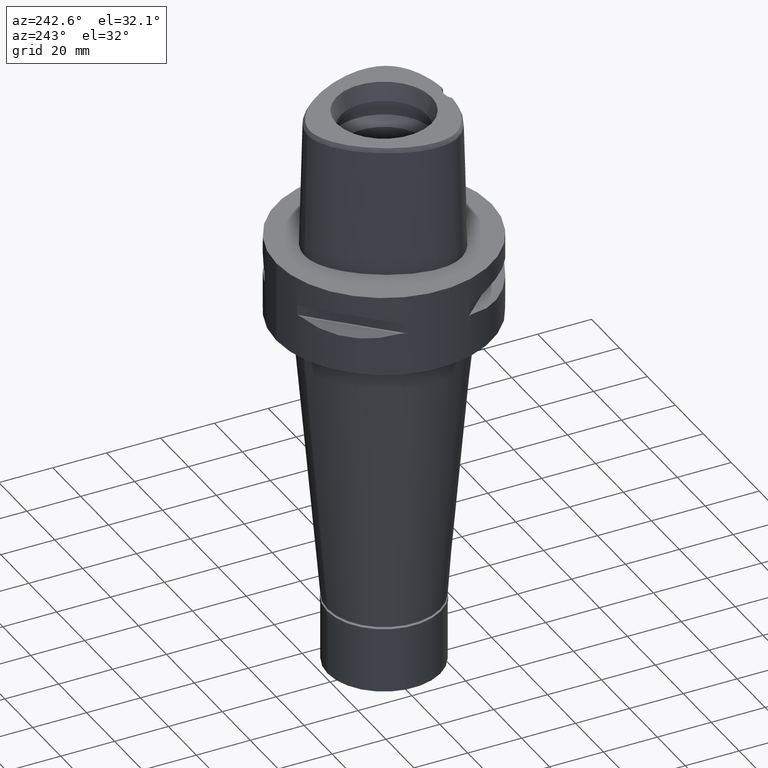
[diagram: clean part render]
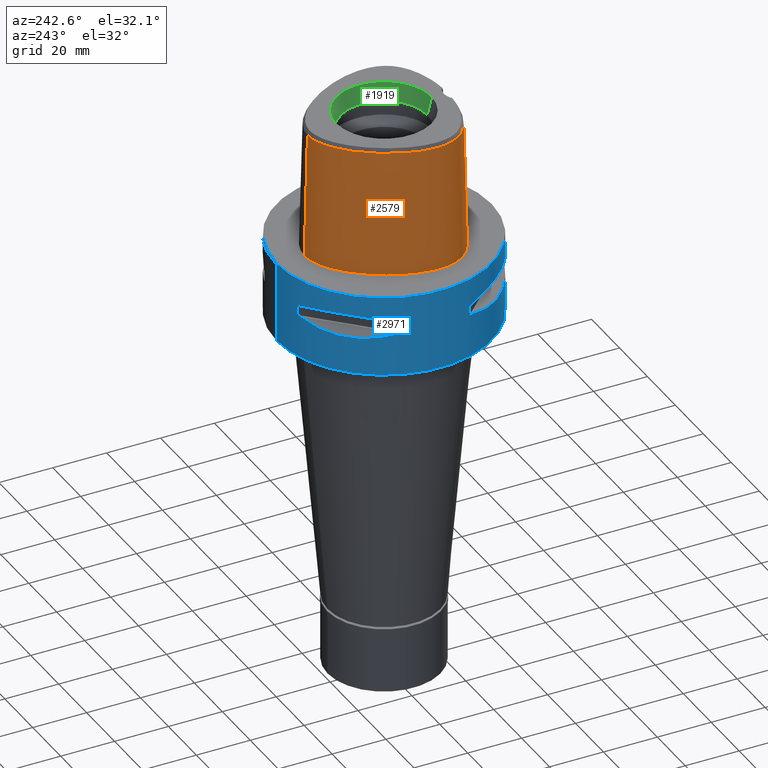
[diagram: same view with three faces highlighted in distinct colors, each labeled with its STEP entity id]
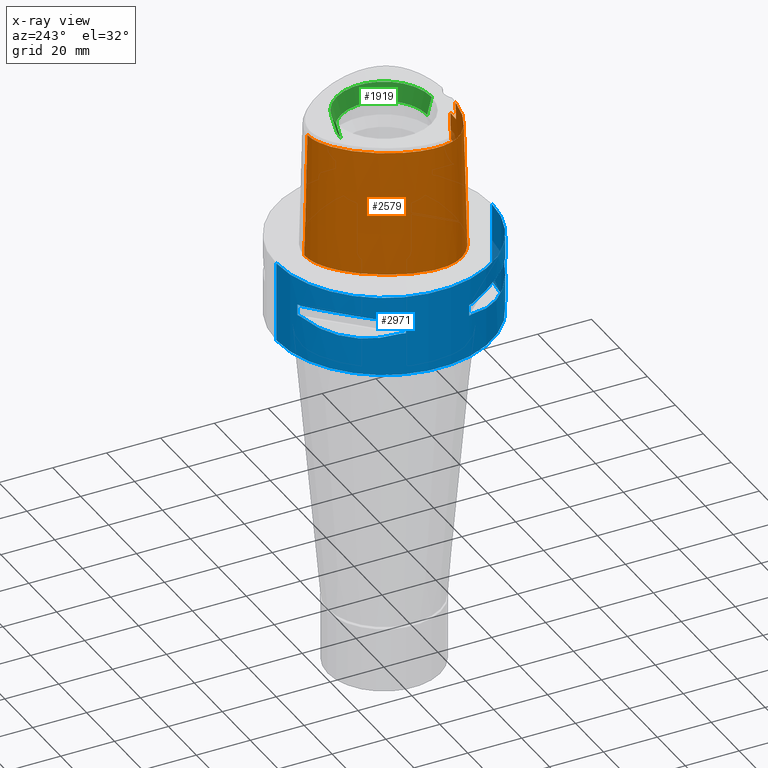
[diagram: x-ray of the same camera — body ghosted, the three highlighted faces saturated]
A machine part, auxiliary view with three faces highlighted in distinct colors.
The next image is the same camera in x-ray (body ghosted, the three faces saturated) — at least one of them is partly hidden behind the body in this view.
Their STEP definitions:

[orange] entity #2579 — the highlighted face is a freeform B-spline surface patch.
#15 = CARTESIAN_POINT ( 'NONE',  ( -25.28208905153766040, -12.92658008282588966, 46.52070903171012617 ) ) ;
#19 = CARTESIAN_POINT ( 'NONE',  ( -26.34912736970198921, -13.39455078015381950, 1.086647932009229822E-07 ) ) ;
#28 = CARTESIAN_POINT ( 'NONE',  ( -2.393548608047999959, -25.62160468836000149, -0.9304144763431999587 ) ) ;
#30 = CARTESIAN_POINT ( 'NONE',  ( -4.536359085941239044, -24.72544551544415015, 25.35955479186052486 ) ) ;
#44 = CARTESIAN_POINT ( 'NONE',  ( 2.898947336125000164E-11, 29.57499999998999840, 6.761258219967000121E-14 ) ) ;
#53 = CARTESIAN_POINT ( 'NONE',  ( -0.5686770761324336787, -25.06378435148999984, 20.45000000000000639 ) ) ;
#76 = VERTEX_POINT ( 'NONE', #3446 ) ;
#115 = CARTESIAN_POINT ( 'NONE',  ( -2.979937750799999563, 28.57037856422000033, 31.32395403688999735 ) ) ;
#122 = CARTESIAN_POINT ( 'NONE',  ( -1.451045074373000022E-08, -24.57504746727000011, 40.00000005214000254 ) ) ;
#168 = CARTESIAN_POINT ( 'NONE',  ( -27.16099298996000044, -1.823107491854000006, 15.19676978026999770 ) ) ;
#191 = CARTESIAN_POINT ( 'NONE',  ( -2.510338385227682600, -24.78948177504961237, 28.79484028636984050 ) ) ;
#195 = EDGE_LOOP ( 'NONE', ( #514, #3190, #542, #4712, #3263, #2426, #3647, #1463 ) ) ;
#212 = VERTEX_POINT ( 'NONE', #1043 ) ;
#214 = CARTESIAN_POINT ( 'NONE',  ( -2.520279592226923437, -24.78912363236072736, 28.78824203054359998 ) ) ;
#263 = CARTESIAN_POINT ( 'NONE',  ( -24.14246365698000218, -15.65707285817999761, 31.32395403688999735 ) ) ;
#289 = CARTESIAN_POINT ( 'NONE',  ( -12.96695410021000150, 23.75598709918000040, 15.19676978026999770 ) ) ;
#291 = CARTESIAN_POINT ( 'NONE',  ( -0.2769662722958331491, -24.83629963748000335, 29.55000000000000782 ) ) ;
#306 = CARTESIAN_POINT ( 'NONE',  ( -1.365199472858000030E-11, 28.41206021534999593, 46.52071719450999154 ) ) ;
#317 = CARTESIAN_POINT ( 'NONE',  ( -5.801139433291000458, 27.25218159689000075, 47.45113829350000145 ) ) ;
#319 = CARTESIAN_POINT ( 'NONE',  ( -2.724936705861591868, -24.96514019468436629, 21.34399272640483147 ) ) ;
#346 = VECTOR ( 'NONE', #370, 1000.000000000000114 ) ;
#347 = CARTESIAN_POINT ( 'NONE',  ( -26.66520868678999889, -5.367805582501000039, 47.45113829350000145 ) ) ;
#350 = CARTESIAN_POINT ( 'NONE',  ( -3.896481458106559437, -24.85034248778501009, 22.65020889969181894 ) ) ;
#368 = CARTESIAN_POINT ( 'NONE',  ( -15.29776366187645209, -22.96525390371141029, 1.086647932009229822E-07 ) ) ;
#370 = DIRECTION ( 'NONE',  ( -4.546824724723830332E-13, -0.02499051295420905497, -0.9996876883618630583 ) ) ;
#375 = CARTESIAN_POINT ( 'NONE',  ( -2.373852718369999781, -25.21827345178000002, 15.19676978026999770 ) ) ;
#377 = CARTESIAN_POINT ( 'NONE',  ( -4.340344041599831115, -24.78724112967247351, 23.63256450709635814 ) ) ;
#399 = CARTESIAN_POINT ( 'NONE',  ( -3.825895809632646305, -24.85889621362735369, 22.53711802513210216 ) ) ;
#422 = CARTESIAN_POINT ( 'NONE',  ( -18.56135208395999925, -21.47443746689999955, -0.9304144763431999587 ) ) ;
#425 = CARTESIAN_POINT ( 'NONE',  ( -4.219931661120497779, -24.80642684597902203, 23.29859562715307675 ) ) ;
#443 = LINE ( 'NONE', #5162, #346 ) ;
#465 = CARTESIAN_POINT ( 'NONE',  ( 0.6077626423644999498, 29.58843421366000115, -0.9304144763431999587 ) ) ;
#490 = CARTESIAN_POINT ( 'NONE',  ( 0.5727458550717000607, 28.78269979497000008, 31.32395403688999735 ) ) ;
#514 = ORIENTED_EDGE ( 'NONE', *, *, #1831, .F. ) ;
#517 = CARTESIAN_POINT ( 'NONE',  ( -3.067023398651000043, 28.96669974898000177, 15.19676978026999770 ) ) ;
#542 = ORIENTED_EDGE ( 'NONE', *, *, #3180, .F. ) ;
#566 = CARTESIAN_POINT ( 'NONE',  ( -25.65830880163000316, -14.81383149358999951, -0.9304144763431999587 ) ) ;
#637 = CARTESIAN_POINT ( 'NONE',  ( -3.972636365752693521, -24.72937778087100824, 27.22257177643495751 ) ) ;
#658 = CARTESIAN_POINT ( 'NONE',  ( -26.50159628876999918, -8.602222732537999406, 47.45113829350000145 ) ) ;
#660 = CARTESIAN_POINT ( 'NONE',  ( -4.183313010706771529, -24.72206008749299500, 26.78965014441195791 ) ) ;
#687 = CARTESIAN_POINT ( 'NONE',  ( -17.14519266789999818, 19.02219896968000157, 31.32395403688999735 ) ) ;
#688 = CARTESIAN_POINT ( 'NONE',  ( -1.676286854296591411, -24.81504355059168532, 29.23004141242346421 ) ) ;
#717 = CARTESIAN_POINT ( 'NONE',  ( -9.105791466037999271, 26.46675914568000110, 15.19676978026999770 ) ) ;
#718 = CARTESIAN_POINT ( 'NONE',  ( -4.098306025962240362, -24.82420565877256280, 23.01795395542374223 ) ) ;
#731 = CARTESIAN_POINT ( 'NONE',  ( -12.44957317646687933, 23.16260189108857048, 46.52070903171012617 ) ) ;
#742 = CARTESIAN_POINT ( 'NONE',  ( -27.70696775900999853, -8.754869100831999873, -0.9304144763431999587 ) ) ;
#744 = CARTESIAN_POINT ( 'NONE',  ( -4.406213798168644225, -24.77565163120073066, 23.85472934568140602 ) ) ;
#762 = CARTESIAN_POINT ( 'NONE',  ( -26.77222814007468088, 1.900468749302032689, 1.086647932009229822E-07 ) ) ;
#775 = CARTESIAN_POINT ( 'NONE',  ( -3.957281473798043514, -24.84276546235785688, 22.75305380327923999 ) ) ;
#792 = CARTESIAN_POINT ( 'NONE',  ( -17.75297950959289750, 19.52218749826069555, 1.086647932009229822E-07 ) ) ;
#813 = CARTESIAN_POINT ( 'NONE',  ( -5.572548441001499597, -24.09475885057674915, 46.52070903171012617 ) ) ;
#820 = CARTESIAN_POINT ( 'NONE',  ( 1.372734075386999954E-14, -24.83629963747999980, 29.55000000000000071 ) ) ;
#823 = CARTESIAN_POINT ( 'NONE',  ( -17.98126124131000125, -20.40884543832999753, 47.45113829350000145 ) ) ;
#825 = CARTESIAN_POINT ( 'NONE',  ( -2.224291573385202447, -24.99814500580199095, 21.02832322412903210 ) ) ;
#840 = CARTESIAN_POINT ( 'NONE',  ( -11.74025985404917982, -24.13566405987596397, 1.086647932009229822E-07 ) ) ;
#869 = CARTESIAN_POINT ( 'NONE',  ( 0.8586475202724000999, 28.76398146995000005, 31.32395403688999735 ) ) ;
#872 = CARTESIAN_POINT ( 'NONE',  ( -27.85475989472375247, -5.337968750068674773, 1.086647932009229822E-07 ) ) ;
#875 = VECTOR ( 'NONE', #1413, 1000.000000000000227 ) ;
#936 = CARTESIAN_POINT ( 'NONE',  ( -3.083107012282354731, -24.50056602082063861, 40.00000010711480058 ) ) ;
#960 = EDGE_CURVE ( 'NONE', #2731, #5212, #3067, .T. ) ;
#970 = CARTESIAN_POINT ( 'NONE',  ( -25.26074793921000250, -12.91722051714999964, 47.45113829350000145 ) ) ;
#1004 = CARTESIAN_POINT ( 'NONE',  ( 0.8462420188563000156, -25.18772736010999935, 15.19676978026999770 ) ) ;
#1018 = CARTESIAN_POINT ( 'NONE',  ( -1.365199472858000030E-11, 28.41206021534999593, 46.52071719450999154 ) ) ;
#1022 = CARTESIAN_POINT ( 'NONE',  ( -4.602965878455999693, -24.35127227233000013, 40.00000000000000000 ) ) ;
#1038 = CARTESIAN_POINT ( 'NONE',  ( -1.611811031578108011, -24.81663505490543997, 29.25526689574284944 ) ) ;
#1043 = CARTESIAN_POINT ( 'NONE',  ( -1.062146509197000080E-11, -25.57499999999999929, 7.397786087418999296E-14 ) ) ;
#1060 = CARTESIAN_POINT ( 'NONE',  ( -16.83227270871000414, 18.76477913229000194, 47.45113829350000145 ) ) ;
#1062 = CARTESIAN_POINT ( 'NONE',  ( -4.140463633215314410, -24.72339410617354361, 26.88684090363465629 ) ) ;
#1086 = CARTESIAN_POINT ( 'NONE',  ( -8.683908163591000928, 25.77663442425000184, 47.45113829350000145 ) ) ;
#1087 = CARTESIAN_POINT ( 'NONE',  ( -3.459328791574005635, -24.75086403572710481, 27.97515479134741767 ) ) ;
#1103 = CARTESIAN_POINT ( 'NONE',  ( -26.38518529508883503, -1.941591755871394209, 46.52070903171012617 ) ) ;
#1116 = CARTESIAN_POINT ( 'NONE',  ( -21.19046239266999976, -19.29498367109999890, 15.19676978026999770 ) ) ;
#1118 = CARTESIAN_POINT ( 'NONE',  ( -3.808704889424080697, -24.86093372512831934, 22.51074749453151824 ) ) ;
#1145 = CARTESIAN_POINT ( 'NONE',  ( -26.40443226412000044, 1.802817673615000116, 15.19676978026999770 ) ) ;
#1147 = CARTESIAN_POINT ( 'NONE',  ( -4.494536868534345864, -24.72037511897826789, 25.72370608056145258 ) ) ;
#1193 = EDGE_CURVE ( 'NONE', #3068, #1994, #3302, .T. ) ;
#1207 = CARTESIAN_POINT ( 'NONE',  ( -3.232655617673356296, -24.92130312931368863, 21.79804365392788057 ) ) ;
#1228 = CARTESIAN_POINT ( 'NONE',  ( -6.691850463451809006, -25.24546874730195256, 1.086647932009229822E-07 ) ) ;
#1230 = CARTESIAN_POINT ( 'NONE',  ( -4.857856660445162988E-09, -24.74922215084392363, 33.03333351495538750 ) ) ;
#1236 = CARTESIAN_POINT ( 'NONE',  ( -2.978031838722717595, -24.94531787462533501, 21.54303487591539223 ) ) ;
#1247 = CARTESIAN_POINT ( 'NONE',  ( -18.55019648952904632, -21.45394531011091033, 1.086647932009229822E-07 ) ) ;
#1267 = CARTESIAN_POINT ( 'NONE',  ( 0.8850788444190998971, 29.16624661495999860, 15.19676978026999770 ) ) ;
#1270 = CARTESIAN_POINT ( 'NONE',  ( -22.33885465531890446, 12.89734374863313882, 1.086647932009229822E-07 ) ) ;
#1280 = CARTESIAN_POINT ( 'NONE',  ( 0.5642418784045000191, -25.19264542676000218, 15.19676978026999770 ) ) ;
#1319 = CARTESIAN_POINT ( 'NONE',  ( -0.7257524945097000302, 29.22811259660999994, 15.19676978026999770 ) ) ;
#1369 = CARTESIAN_POINT ( 'NONE',  ( -27.56041892240000024, -1.762105663764000019, -0.9304144763431999587 ) ) ;
#1413 = DIRECTION ( 'NONE',  ( 9.163261710875221440E-13, 0.02499051293976060906, -0.9996876883622242138 ) ) ;
#1432 = CARTESIAN_POINT ( 'NONE',  ( -3.192130741525158744, -24.76262039752747413, 28.24235843699960569 ) ) ;
#1458 = CARTESIAN_POINT ( 'NONE',  ( -26.76156705753000153, -1.884109319943999994, 31.32395403688999735 ) ) ;
#1463 = ORIENTED_EDGE ( 'NONE', *, *, #4824, .T. ) ;
#1482 = CARTESIAN_POINT ( 'NONE',  ( -12.43420517478999976, 23.14497629947000235, 47.45113829350000145 ) ) ;
#1484 = CARTESIAN_POINT ( 'NONE',  ( -0.5644801122068424659, -24.83439132317404940, 29.52465347867335055 ) ) ;
#1505 = CARTESIAN_POINT ( 'NONE',  ( -22.86810882090999897, -17.21714036512999968, 31.32395403688999735 ) ) ;
#1506 = CARTESIAN_POINT ( 'NONE',  ( -1.482686770870140114, -24.81966152212502763, 29.30289444251079445 ) ) ;
#1537 = CARTESIAN_POINT ( 'NONE',  ( -13.23332856291999882, 24.06149249902999898, -0.9304144763431999587 ) ) ;
#1539 = CARTESIAN_POINT ( 'NONE',  ( -1.791332517423404047, -25.02133236723706844, 20.81740716610698883 ) ) ;
#1567 = CARTESIAN_POINT ( 'NONE',  ( -15.01246784737000084, -22.23414198730000280, 31.32395403688999735 ) ) ;
#1568 = CARTESIAN_POINT ( 'NONE',  ( -1.748501813549765194, -25.02335543620021241, 20.79936485166492588 ) ) ;
#1594 = CARTESIAN_POINT ( 'NONE',  ( -4.525164906393141173, -24.74975131237584947, 24.43996234641501530 ) ) ;
#1620 = CARTESIAN_POINT ( 'NONE',  ( -3.994669282579361269, -24.83794919743791851, 22.82040209576821610 ) ) ;
#1634 = CARTESIAN_POINT ( 'NONE',  ( -7.937300651753473879, -23.78071178104302419, 46.52070903171012617 ) ) ;
#1646 = B_SPLINE_CURVE_WITH_KNOTS ( 'NONE', 3,
 ( #44, #3167, #4876, #4381, #2039, #4800, #792, #1270, #2798, #762, #1662, #872, #3273, #3641, #19, #2462, #3251, #2387, #3994, #1247, #368, #840, #1228, #2827, #4070 ),
 .UNSPECIFIED., .F., .F.,
 ( 4, 1, 1, 1, 1, 1, 1, 1, 1, 1, 1, 1, 1, 1, 1, 1, 1, 1, 1, 1, 1, 1, 4 ),
 ( 0.0000000000000000000, 0.04166666666702999872, 0.08333333333366001183, 0.1250000000003000100, 0.1666666666670000019, 0.2500000000002000067, 0.3333333333335000148, 0.4166666666668000230, 0.4583333333333999837, 0.5000000000001000311, 0.5416666666667000474, 0.5833333333333000637, 0.6250000000000000000, 0.6458333333333000637, 0.6666666666666000163, 0.6874999999999000799, 0.7083333333332000326, 0.7499999999999000799, 0.7916666666666000163, 0.8333333333331000015, 0.8749999999998000488, 0.9166666666664999852, 1.000000000000000000 ),
 .UNSPECIFIED. ) ;
#1647 = CARTESIAN_POINT ( 'NONE',  ( 0.5595577616865999859, -24.78951189442999947, 31.32395403688999735 ) ) ;
#1649 = CARTESIAN_POINT ( 'NONE',  ( -4.549921019084921525, -24.74001865967037261, 24.72536366591872437 ) ) ;
#1662 = CARTESIAN_POINT ( 'NONE',  ( -27.53737511591406317, -1.765625000410991463, 1.086647932009229822E-07 ) ) ;
#1672 = CARTESIAN_POINT ( 'NONE',  ( -11.74634101483999871, -24.15815461092999783, -0.9304144763431999587 ) ) ;
#1789 = CARTESIAN_POINT ( 'NONE',  ( -23.44929528154000309, -17.78045351947000086, -0.9304144763431999587 ) ) ;
#1831 = EDGE_CURVE ( 'NONE', #5212, #212, #443, .T. ) ;
#1834 = CARTESIAN_POINT ( 'NONE',  ( -1.733314166582773153, -24.81359117582310247, 29.20692116581517084 ) ) ;
#1860 = CARTESIAN_POINT ( 'NONE',  ( -2.652045588673545673, -24.78435656486182026, 28.70018943685019153 ) ) ;
#1887 = CARTESIAN_POINT ( 'NONE',  ( -5.957940679030000020, 27.62557846633000125, 31.32395403688999735 ) ) ;
#1888 = CARTESIAN_POINT ( 'NONE',  ( -1.003044292487226485, -24.82866638025620531, 29.44055839642894767 ) ) ;
#1908 = CARTESIAN_POINT ( 'NONE',  ( -26.01411827051999737, 1.699187959901000022, 31.32395403688999735 ) ) ;
#1910 = CARTESIAN_POINT ( 'NONE',  ( -1.722296434336843207, -24.81387508079694726, 29.21144792399064727 ) ) ;
#1924 = CARTESIAN_POINT ( 'NONE',  ( -0.9629684636072818327, 28.41206041874023569, 46.52070903171012617 ) ) ;
#1935 = CARTESIAN_POINT ( 'NONE',  ( -27.87808443098999689, -5.337383714069000362, -0.9304144763431999587 ) ) ;
#1937 = CARTESIAN_POINT ( 'NONE',  ( -3.245740051672676429, -24.92006245179829804, 21.81130774429478691 ) ) ;
#1970 = CARTESIAN_POINT ( 'NONE',  ( -2.039991806422782439, -25.00858519317930018, 20.93235562228158742 ) ) ;
#1984 = CARTESIAN_POINT ( 'NONE',  ( -20.71467387648511149, -18.66855143331159184, 46.52070903171012617 ) ) ;
#1994 = VERTEX_POINT ( 'NONE', #1022 ) ;
#1998 = CARTESIAN_POINT ( 'NONE',  ( -3.310528231614959349, -24.91386642802240203, 21.87824841565020151 ) ) ;
#2021 = CARTESIAN_POINT ( 'NONE',  ( -3.790579096131105885, -24.86307050843589650, 22.48323682071578489 ) ) ;
#2036 = CARTESIAN_POINT ( 'NONE',  ( -17.99241701171436247, -20.42933791837110746, 46.52070903171012617 ) ) ;
#2039 = CARTESIAN_POINT ( 'NONE',  ( -9.304563405192194381, 26.79191406017784161, 1.086647932009229822E-07 ) ) ;
#2048 = CARTESIAN_POINT ( 'NONE',  ( -18.36798846974000199, -21.11924012404000095, 15.19676978026999770 ) ) ;
#2050 = CARTESIAN_POINT ( 'NONE',  ( -3.265305598819547406, -24.91820214815112067, 21.83126415608266058 ) ) ;
#2076 = CARTESIAN_POINT ( 'NONE',  ( -11.43012069064000080, -22.98864609270000159, 47.45113829350000145 ) ) ;
#2089 = CARTESIAN_POINT ( 'NONE',  ( 0.5902542487180999498, 29.18556700430999840, 15.19676978026999770 ) ) ;
#2194 = CARTESIAN_POINT ( 'NONE',  ( -24.79336081447999973, -16.13554022451000236, -0.9304144763431999587 ) ) ;
#2214 = CARTESIAN_POINT ( 'NONE',  ( -2.771982096822935393, -24.77983138410382224, 28.61121349796146873 ) ) ;
#2267 = CARTESIAN_POINT ( 'NONE',  ( -1.150414049173519748, -24.82628098737377798, 29.40485804970605344 ) ) ;
#2289 = CARTESIAN_POINT ( 'NONE',  ( -26.73375370744999913, -11.30662581600000038, 15.19676978026999770 ) ) ;
#2290 = CARTESIAN_POINT ( 'NONE',  ( -4.192714366875119225, -24.72178541175449951, 26.76740225216487445 ) ) ;
#2291 = EDGE_CURVE ( 'NONE', #3315, #1994, #4863, .T. ) ;
#2315 = CARTESIAN_POINT ( 'NONE',  ( -21.65785138473999893, 12.50416150639999913, 31.32395403688999735 ) ) ;
#2331 = CARTESIAN_POINT ( 'NONE',  ( -4.472216406693000579, -24.20008985674000357, 46.52070903171000538 ) ) ;
#2339 = CARTESIAN_POINT ( 'NONE',  ( -26.00056140999999954, -13.24168030451000000, 15.19676978026999770 ) ) ;
#2341 = CARTESIAN_POINT ( 'NONE',  ( -3.797137772289173263, -24.86229941254662634, 22.49313827486260564 ) ) ;
#2355 = CARTESIAN_POINT ( 'NONE',  ( -11.43620194735780871, -23.01113699853020123, 46.52070903171012617 ) ) ;
#2367 = CARTESIAN_POINT ( 'NONE',  ( -26.36214112509999907, -1.945111148033999982, 47.45113829350000145 ) ) ;
#2369 = CARTESIAN_POINT ( 'NONE',  ( -4.156037652092123835, -24.81598364112162969, 23.14362525770374646 ) ) ;
#2387 = CARTESIAN_POINT ( 'NONE',  ( -23.43253028552562256, -17.76420409965854574, 1.086647932009229822E-07 ) ) ;
#2402 = CARTESIAN_POINT ( 'NONE',  ( -4.201380620709784353, -24.72153596869750913, 26.74670933509911563 ) ) ;
#2419 = CARTESIAN_POINT ( 'NONE',  ( -1.451045074373000022E-08, -24.57504746727000011, 40.00000005214000254 ) ) ;
#2421 = CARTESIAN_POINT ( 'NONE',  ( -18.17462485553000207, -20.76404278117999880, 31.32395403688999735 ) ) ;
#2423 = CARTESIAN_POINT ( 'NONE',  ( -4.212409792926583130, -24.80756021599265537, 23.28005703556016570 ) ) ;
#2426 = ORIENTED_EDGE ( 'NONE', *, *, #4594, .T. ) ;
#2441 = CARTESIAN_POINT ( 'NONE',  ( -14.86558287304999837, -21.85772793001999759, 47.45113829350000145 ) ) ;
#2443 = CARTESIAN_POINT ( 'NONE',  ( -4.198926685531662706, -24.72160612811940439, 26.75259212958649968 ) ) ;
#2462 = CARTESIAN_POINT ( 'NONE',  ( -25.63812389624141375, -14.80217773301680495, 1.086647932009229822E-07 ) ) ;
#2471 = CARTESIAN_POINT ( 'NONE',  ( -6.584202217045000083, -24.46732447799000099, 31.32395403688999735 ) ) ;
#2489 = CARTESIAN_POINT ( 'NONE',  ( 0.8322161961257998897, 28.36171632494000150, 47.45113829350000145 ) ) ;
#2510 = CARTESIAN_POINT ( 'NONE',  ( -0.7475778414352001189, 29.63225228726999916, -0.9304144763431999587 ) ) ;
#2530 = CARTESIAN_POINT ( 'NONE',  ( -0.6821018006586000437, 28.41983321528999795, 47.45113829350000145 ) ) ;
#2575 = CARTESIAN_POINT ( 'NONE',  ( -1.320303668946000038E-12, -25.06378435148999984, 20.44999999999999929 ) ) ;
#2579 = ADVANCED_FACE ( 'NONE', ( #3270 ), #2974, .T. ) ;
#2587 = CARTESIAN_POINT ( 'NONE',  ( -17.77103258626999605, 19.53703864445999727, -0.9304144763431999587 ) ) ;
#2601 = CARTESIAN_POINT ( 'NONE',  ( -1.703896036126127056, -24.81434470502066603, 29.21892603896870000 ) ) ;
#2625 = CARTESIAN_POINT ( 'NONE',  ( -2.249867388139984214, -24.79844751147312820, 28.95562542824798058 ) ) ;
#2654 = CARTESIAN_POINT ( 'NONE',  ( -3.900686180413633242, -24.73222278675433827, 27.34720371155059837 ) ) ;
#2674 = CARTESIAN_POINT ( 'NONE',  ( -27.47379251626000141, -5.347524336878999307, 15.19676978026999770 ) ) ;
#2694 = CARTESIAN_POINT ( 'NONE',  ( -27.06950060152000148, -5.357664959690000117, 31.32395403688999735 ) ) ;
#2714 = CARTESIAN_POINT ( 'NONE',  ( -21.32746397970394625, 12.31340991043225586, 46.52070903171012617 ) ) ;
#2726 = CARTESIAN_POINT ( 'NONE',  ( -20.94550185286999877, -18.97246395088999904, 31.32395403688999735 ) ) ;
#2728 = CARTESIAN_POINT ( 'NONE',  ( -3.702709904148339781, -24.87336589807969744, 22.35148037005132338 ) ) ;
#2731 = VERTEX_POINT ( 'NONE', #4390 ) ;
#2751 = CARTESIAN_POINT ( 'NONE',  ( -22.00846693120000097, 12.70659196844999883, 15.19676978026999770 ) ) ;
#2753 = CARTESIAN_POINT ( 'NONE',  ( -4.550009659928404560, -24.73228693208368867, 25.03285394944703057 ) ) ;
#2766 = CARTESIAN_POINT ( 'NONE',  ( -25.97777222569302324, -11.09135444108492763, 46.52070903171012617 ) ) ;
#2795 = CARTESIAN_POINT ( 'NONE',  ( -25.64632274977633131, 1.601536978524661148, 46.52070903171012617 ) ) ;
#2798 = CARTESIAN_POINT ( 'NONE',  ( -25.20914249733636581, 6.827421873974220290, 1.086647932009229822E-07 ) ) ;
#2809 = CARTESIAN_POINT ( 'NONE',  ( -20.70054131307000134, -18.64994423069000007, 47.45113829350000145 ) ) ;
#2824 = CARTESIAN_POINT ( 'NONE',  ( -23.83579125613599459, -15.43164133759989909, 46.52070903171012617 ) ) ;
#2827 = CARTESIAN_POINT ( 'NONE',  ( -2.676740185391740745, -25.57499999728312190, 1.086647932009229822E-07 ) ) ;
#2833 = CARTESIAN_POINT ( 'NONE',  ( -11.64093424010999911, -23.76831843818999701, 15.19676978026999770 ) ) ;
#2835 = CARTESIAN_POINT ( 'NONE',  ( -4.207829589086045097, -24.80824686016802616, 23.26889234074806367 ) ) ;
#2915 = CARTESIAN_POINT ( 'NONE',  ( -0.7039271475841999415, 28.82397290595000072, 31.32395403688999735 ) ) ;
#2965 = CARTESIAN_POINT ( 'NONE',  ( -26.90338677884999896, -8.653104855302998999, 31.32395403688999735 ) ) ;
#2974 = B_SPLINE_SURFACE_WITH_KNOTS ( 'NONE', 3, 3, ( 
 ( #4873, #1267, #869, #2489 ),
 ( #465, #2089, #490, #3690 ),
 ( #2510, #1319, #2915, #2530 ),
 ( #4140, #517, #115, #3543 ),
 ( #3062, #4335, #1887, #317 ),
 ( #3970, #717, #4698, #1086 ),
 ( #1537, #289, #4675, #1482 ),
 ( #2587, #5141, #687, #1060 ),
 ( #4191, #2751, #2315, #4278 ),
 ( #5064, #4305, #3786, #3146 ),
 ( #4585, #1145, #1908, #4363 ),
 ( #1369, #168, #1458, #2367 ),
 ( #1935, #2674, #2694, #347 ),
 ( #742, #3364, #2965, #658 ),
 ( #4756, #2289, #3490, #4972 ),
 ( #3880, #2339, #5086, #970 ),
 ( #566, #3938, #3910, #3513 ),
 ( #2194, #5110, #263, #3087 ),
 ( #1789, #3396, #1505, #3113 ),
 ( #4725, #1116, #2726, #2809 ),
 ( #422, #2048, #2421, #823 ),
 ( #3652, #3205, #1567, #2441 ),
 ( #1672, #2833, #4051, #2076 ),
 ( #3282, #4029, #2471, #5200 ),
 ( #28, #375, #3598, #4782 ),
 ( #4106, #1280, #1647, #3259 ),
 ( #3678, #1004, #4080, #4884 ) ),
 .UNSPECIFIED., .F., .F., .F.,
 ( 4, 1, 1, 1, 1, 1, 1, 1, 1, 1, 1, 1, 1, 1, 1, 1, 1, 1, 1, 1, 1, 1, 1, 1, 4 ),
 ( 4, 4 ),
 ( -0.01204223939036999994, 0.0000000000000000000, 0.04166666666702999872, 0.08333333333366001183, 0.1250000000003000100, 0.1666666666670000019, 0.2500000000002000067, 0.3333333333335000148, 0.4166666666668000230, 0.4583333333333999837, 0.5000000000001000311, 0.5416666666667000474, 0.5833333333333000637, 0.6250000000000000000, 0.6458333333333000637, 0.6666666666666000163, 0.6874999999999000799, 0.7083333333332000326, 0.7499999999999000799, 0.7916666666666000163, 0.8333333333331000015, 0.8749999999998000488, 0.9166666666664999852, 1.000000000000000000, 1.008851807892999997 ),
 ( 5.344296075127000587E-09, 0.9999997274408999326 ),
 .UNSPECIFIED. ) ;
#3036 = CARTESIAN_POINT ( 'NONE',  ( -4.560197131398992632, -24.30012325357083469, 42.17356967723666372 ) ) ;
#3037 = CARTESIAN_POINT ( 'NONE',  ( -3.657706900528191696, -24.74222987758970049, 27.72260022702114313 ) ) ;
#3062 = CARTESIAN_POINT ( 'NONE',  ( -6.271543170508000031, 28.37237220519999781, -0.9304144763431999587 ) ) ;
#3064 = CARTESIAN_POINT ( 'NONE',  ( -2.466259342607413529, -24.79105701084885638, 28.82372012011356333 ) ) ;
#3067 = B_SPLINE_CURVE_WITH_KNOTS ( 'NONE', 3,
 ( #3088, #291, #1484, #1888, #2267, #4307, #1506, #1038, #688, #2601, #1910, #1834, #4206, #3514, #4699, #2625, #3882, #4233, #3064, #3434, #191, #214, #1860, #2214, #3492, #5037, #5014, #3413, #1432, #5087, #4649, #1087, #3037, #2654, #637, #3852, #3458, #1062, #4279, #660, #2290, #2443, #2402, #3600, #3654, #1147, #4365, #30, #3973, #4336, #3148, #2753, #1649, #1594, #3233, #744, #377, #3261, #3178, #4053, #425, #2423, #2835, #2369, #718, #1620, #775, #350, #5202, #399, #1118, #2341, #2021, #2728, #3940, #3622, #3207, #1998, #2050, #1937, #1207, #4842, #1236, #319, #4447, #825, #1970, #3545, #5143, #4758, #1539, #3577, #5172, #1568, #3355, #53, #2575 ),
 .UNSPECIFIED., .F., .F.,
 ( 4, 2, 2, 1, 1, 1, 2, 2, 2, 2, 1, 1, 2, 2, 2, 1, 1, 1, 2, 2, 2, 2, 2, 1, 1, 2, 2, 2, 2, 1, 2, 2, 2, 2, 1, 1, 1, 2, 2, 2, 2, 1, 1, 2, 2, 2, 1, 1, 1, 2, 2, 2, 2, 2, 1, 1, 2, 2, 4 ),
 ( 0.0000000000000000000, 0.06249999999999449052, 0.09374999999999172884, 0.1093749999999903549, 0.1171874999999896749, 0.1210937499999893002, 0.1230468749999892586, 0.1249999999999892308, 0.1562499999999917288, 0.1718749999999929223, 0.1796874999999934774, 0.1835937499999937550, 0.1855468749999940603, 0.1874999999999943379, 0.2187499999999990841, 0.2343750000000016653, 0.2421875000000029143, 0.2460937500000034972, 0.2480468750000040523, 0.2500000000000046074, 0.3125000000000329736, 0.3437500000000474620, 0.3593750000000550671, 0.3671875000000585088, 0.3710937500000602296, 0.3730468750000607292, 0.3750000000000611733, 0.4375000000000633382, 0.4687500000000640599, 0.4843750000000643929, 0.4921875000000648925, 0.5000000000000655032, 0.5625000000000721645, 0.5937500000000752731, 0.6093750000000763833, 0.6171875000000770495, 0.6210937500000770495, 0.6230468750000770495, 0.6250000000000771605, 0.6562500000000751621, 0.6718750000000742739, 0.6796875000000737188, 0.6835937500000734968, 0.6855468750000731637, 0.6875000000000727196, 0.7187500000000667244, 0.7343750000000635048, 0.7421875000000618394, 0.7460937500000609512, 0.7480468750000607292, 0.7500000000000605072, 0.8125000000000480727, 0.8437500000000417444, 0.8593750000000387468, 0.8671875000000371925, 0.8710937500000366374, 0.8730468750000361933, 0.8750000000000356382, 1.000000000000000000 ),
 .UNSPECIFIED. ) ;
#3068 = VERTEX_POINT ( 'NONE', #3873 ) ;
#3087 = CARTESIAN_POINT ( 'NONE',  ( -23.81701507821999897, -15.41783917500999834, 47.45113829350000145 ) ) ;
#3088 = CARTESIAN_POINT ( 'NONE',  ( 1.372734075386999954E-14, -24.83629963747999980, 29.55000000000000071 ) ) ;
#3113 = CARTESIAN_POINT ( 'NONE',  ( -22.57751559059999735, -16.93548378795999909, 47.45113829350000145 ) ) ;
#3114 = CARTESIAN_POINT ( 'NONE',  ( -4.602965878455999693, -24.35127227233000013, 40.00000000000000000 ) ) ;
#3146 = CARTESIAN_POINT ( 'NONE',  ( -24.10679984044999813, 6.379205541272000346, 47.45113829350000145 ) ) ;
#3148 = CARTESIAN_POINT ( 'NONE',  ( -4.549596676163453424, -24.73138399865688086, 25.07048059281705221 ) ) ;
#3167 = CARTESIAN_POINT ( 'NONE',  ( -1.049694957958209107, 29.57499999728746332, 1.086647932009229822E-07 ) ) ;
#3178 = CARTESIAN_POINT ( 'NONE',  ( -4.256460948041307368, -24.80084657812258442, 23.39133378591555967 ) ) ;
#3180 = EDGE_CURVE ( 'NONE', #3315, #2731, #3916, .T. ) ;
#3190 = ORIENTED_EDGE ( 'NONE', *, *, #960, .F. ) ;
#3193 = CARTESIAN_POINT ( 'NONE',  ( -22.59428085107303374, -16.95173346409718107, 46.52070903171012617 ) ) ;
#3205 = CARTESIAN_POINT ( 'NONE',  ( -15.15935282167999887, -22.61055604458000090, 15.19676978026999770 ) ) ;
#3207 = CARTESIAN_POINT ( 'NONE',  ( -3.399231802462693519, -24.90521494129052016, 21.97387284700376853 ) ) ;
#3233 = CARTESIAN_POINT ( 'NONE',  ( -4.441732659387184867, -24.76864030037668840, 24.00221451032573938 ) ) ;
#3247 = CARTESIAN_POINT ( 'NONE',  ( -14.87405714084838415, -21.87944447072975507, 46.52070903171012617 ) ) ;
#3251 = CARTESIAN_POINT ( 'NONE',  ( -24.77458493274385987, -16.12173827963824735, 1.086647932009229822E-07 ) ) ;
#3259 = CARTESIAN_POINT ( 'NONE',  ( 0.5548736449686999528, -24.38637836210000032, 47.45113829350000145 ) ) ;
#3261 = CARTESIAN_POINT ( 'NONE',  ( -4.304263127651266174, -24.79330400446724525, 23.52125164125756385 ) ) ;
#3263 = ORIENTED_EDGE ( 'NONE', *, *, #1193, .F. ) ;
#3270 = FACE_OUTER_BOUND ( 'NONE', #195, .T. ) ;
#3273 = CARTESIAN_POINT ( 'NONE',  ( -27.68378753572119777, -8.751933593406613809, 1.086647932009229822E-07 ) ) ;
#3282 = CARTESIAN_POINT ( 'NONE',  ( -6.695047936502000141, -25.26858194619999765, -0.9304144763431999587 ) ) ;
#3302 = B_SPLINE_CURVE_WITH_KNOTS ( 'NONE', 3,
 ( #4676, #3433, #3036, #3114 ),
 .UNSPECIFIED., .F., .F.,
 ( 4, 4 ),
 ( 0.0000000000000000000, 1.000000000000000000 ),
 .UNSPECIFIED. ) ;
#3315 = VERTEX_POINT ( 'NONE', #122 ) ;
#3355 = CARTESIAN_POINT ( 'NONE',  ( -1.165430911964701055, -25.05044697737377035, 20.55812161079715850 ) ) ;
#3364 = CARTESIAN_POINT ( 'NONE',  ( -27.30517726892999875, -8.703986978068000369, 15.19676978026999770 ) ) ;
#3396 = CARTESIAN_POINT ( 'NONE',  ( -23.15870205122999792, -17.49879694230000027, 15.19676978026999770 ) ) ;
#3413 = CARTESIAN_POINT ( 'NONE',  ( -3.172181247292561679, -24.76348918694394285, 28.26195868750398077 ) ) ;
#3420 = LINE ( 'NONE', #1018, #875 ) ;
#3433 = CARTESIAN_POINT ( 'NONE',  ( -4.516620139914707011, -24.24973684088320525, 44.34713935447333455 ) ) ;
#3434 = CARTESIAN_POINT ( 'NONE',  ( -2.492689275653129144, -24.79011428768484748, 28.80645659143079129 ) ) ;
#3446 = CARTESIAN_POINT ( 'NONE',  ( -1.365199472858000030E-11, 28.41206021534999593, 46.52071719450999154 ) ) ;
#3458 = CARTESIAN_POINT ( 'NONE',  ( -4.098396066246055902, -24.72479182399337105, 26.97739233805751269 ) ) ;
#3464 = B_SPLINE_CURVE_WITH_KNOTS ( 'NONE', 3,
 ( #2331, #813, #1634, #2355, #3247, #2036, #1984, #3193, #2824, #3638, #15, #2766, #4433, #4353, #1103, #2795, #4746, #2714, #4377, #731, #3927, #3562, #3589, #1924, #306 ),
 .UNSPECIFIED., .F., .F.,
 ( 4, 1, 1, 1, 1, 1, 1, 1, 1, 1, 1, 1, 1, 1, 1, 1, 1, 1, 1, 1, 1, 1, 4 ),
 ( 0.0000000000000000000, 0.03735859270279204281, 0.08111502030725348256, 0.1248714479117150333, 0.1686278755159665022, 0.2123843031204279419, 0.2561407307248894649, 0.2780189445270676574, 0.2998971583292460164, 0.3217753721314242088, 0.3436535859336025123, 0.3874100135380639243, 0.4311664411424204202, 0.4749228687467769716, 0.5186792963512385501, 0.5624357239555950461, 0.6499485791644129540, 0.7374614343732308619, 0.8249742895819439648, 0.8687307171864054878, 0.9124871447908039501, 0.9562435723951919764, 1.000000000000000000 ),
 .UNSPECIFIED. ) ;
#3490 = CARTESIAN_POINT ( 'NONE',  ( -26.34453533509999801, -11.19579297659999995, 31.32395403688999735 ) ) ;
#3492 = CARTESIAN_POINT ( 'NONE',  ( -2.944900302943597836, -24.77298581947536604, 28.46923970402222182 ) ) ;
#3513 = CARTESIAN_POINT ( 'NONE',  ( -24.60869384401000204, -14.20783601455000067, 47.45113829350000145 ) ) ;
#3514 = CARTESIAN_POINT ( 'NONE',  ( -1.984502176480207103, -24.80676203802992319, 29.09712838306113980 ) ) ;
#3543 = CARTESIAN_POINT ( 'NONE',  ( -2.892852102947999882, 28.17405737945999888, 47.45113829350000145 ) ) ;
#3545 = CARTESIAN_POINT ( 'NONE',  ( -1.979024681902056715, -25.01188081594394674, 20.90239184516332926 ) ) ;
#3562 = CARTESIAN_POINT ( 'NONE',  ( -5.810185802762526386, 27.27372406630434298, 46.52070903171012617 ) ) ;
#3577 = CARTESIAN_POINT ( 'NONE',  ( -1.769098408929643984, -25.02238666794957922, 20.80800104489354041 ) ) ;
#3589 = CARTESIAN_POINT ( 'NONE',  ( -2.897876354790399400, 28.19692242654116043, 46.52070903171012617 ) ) ;
#3598 = CARTESIAN_POINT ( 'NONE',  ( -2.354156828690999959, -24.81494221518999765, 31.32395403688999735 ) ) ;
#3600 = CARTESIAN_POINT ( 'NONE',  ( -4.322680882352821108, -24.71812462909636210, 26.45319451589575621 ) ) ;
#3622 = CARTESIAN_POINT ( 'NONE',  ( -3.472208232089661895, -24.89783358727838802, 22.05860165752378776 ) ) ;
#3638 = CARTESIAN_POINT ( 'NONE',  ( -24.62887906780444780, -14.21948995895490242, 46.52070903171012617 ) ) ;
#3641 = CARTESIAN_POINT ( 'NONE',  ( -27.10051717108033031, -11.41106445238012768, 1.086647932009229822E-07 ) ) ;
#3647 = ORIENTED_EDGE ( 'NONE', *, *, #4002, .T. ) ;
#3652 = CARTESIAN_POINT ( 'NONE',  ( -15.30623779600000134, -22.98697010185999901, -0.9304144763431999587 ) ) ;
#3654 = CARTESIAN_POINT ( 'NONE',  ( -4.409270466782026610, -24.71744676443914557, 26.16158622813301449 ) ) ;
#3678 = CARTESIAN_POINT ( 'NONE',  ( 0.8532670503981000243, -25.59082387528999902, -0.9304144763431999587 ) ) ;
#3690 = CARTESIAN_POINT ( 'NONE',  ( 0.5552374614252999496, 28.37983258563000177, 47.45113829350000145 ) ) ;
#3786 = CARTESIAN_POINT ( 'NONE',  ( -24.48145224757000094, 6.531540504369000466, 31.32395403688999735 ) ) ;
#3852 = CARTESIAN_POINT ( 'NONE',  ( -4.068466760403410376, -24.72584630863870103, 27.03834969239067476 ) ) ;
#3873 = CARTESIAN_POINT ( 'NONE',  ( -4.472216406693000579, -24.20008985674000357, 46.52070903171000538 ) ) ;
#3880 = CARTESIAN_POINT ( 'NONE',  ( -26.37046814538999939, -13.40391019819000107, -0.9304144763431999587 ) ) ;
#3882 = CARTESIAN_POINT ( 'NONE',  ( -2.352923008986411713, -24.79499099983798516, 28.89459205334613046 ) ) ;
#3910 = CARTESIAN_POINT ( 'NONE',  ( -24.95856549655000123, -14.40983450755999939, 31.32395403688999735 ) ) ;
#3916 = B_SPLINE_CURVE_WITH_KNOTS ( 'NONE', 3,
 ( #2419, #4441, #1230, #820 ),
 .UNSPECIFIED., .F., .F.,
 ( 4, 4 ),
 ( 0.0000000000000000000, 1.000000000000000000 ),
 .UNSPECIFIED. ) ;
#3927 = CARTESIAN_POINT ( 'NONE',  ( -8.696078067630425679, 25.79654218449125125, 46.52070903171012617 ) ) ;
#3938 = CARTESIAN_POINT ( 'NONE',  ( -25.30843714909000042, -14.61183300057999901, 15.19676978026999770 ) ) ;
#3940 = CARTESIAN_POINT ( 'NONE',  ( -3.613911253851756378, -24.88311648731248127, 22.23154152753993529 ) ) ;
#3970 = CARTESIAN_POINT ( 'NONE',  ( -9.316733117261000174, 26.81182150639000028, -0.9304144763431999587 ) ) ;
#3973 = CARTESIAN_POINT ( 'NONE',  ( -4.544092989177814346, -24.72741046393047526, 25.25074796832976176 ) ) ;
#3994 = CARTESIAN_POINT ( 'NONE',  ( -21.42129059198483887, -19.59889648220166691, 1.086647932009229822E-07 ) ) ;
#4002 = EDGE_CURVE ( 'NONE', #76, #4865, #3420, .T. ) ;
#4029 = CARTESIAN_POINT ( 'NONE',  ( -6.639625076774000156, -24.86795321209000065, 15.19676978026999770 ) ) ;
#4051 = CARTESIAN_POINT ( 'NONE',  ( -11.53552746537000040, -23.37848226544000241, 31.32395403688999735 ) ) ;
#4053 = CARTESIAN_POINT ( 'NONE',  ( -4.231109674115376862, -24.80473516988229221, 23.32640847146414842 ) ) ;
#4070 = CARTESIAN_POINT ( 'NONE',  ( -1.062146509197000080E-11, -25.57499999999999929, 7.397786087418999296E-14 ) ) ;
#4080 = CARTESIAN_POINT ( 'NONE',  ( 0.8392169873145001180, -24.78463084491999524, 31.32395403688999735 ) ) ;
#4106 = CARTESIAN_POINT ( 'NONE',  ( 0.5689259951224999723, -25.59577895909000134, -0.9304144763431999587 ) ) ;
#4140 = CARTESIAN_POINT ( 'NONE',  ( -3.154109046502999725, 29.36302093374000322, -0.9304144763431999587 ) ) ;
#4191 = CARTESIAN_POINT ( 'NONE',  ( -22.35908247767000034, 12.90902243049999853, -0.9304144763431999587 ) ) ;
#4206 = CARTESIAN_POINT ( 'NONE',  ( -1.858668925429011187, -24.81033890557745281, 29.15501574767838733 ) ) ;
#4233 = CARTESIAN_POINT ( 'NONE',  ( -2.404910036721157773, -24.79321437770949998, 28.86288751850016610 ) ) ;
#4272 = CARTESIAN_POINT ( 'NONE',  ( -1.320303668946000038E-12, -25.06378435148999984, 20.44999999999999929 ) ) ;
#4278 = CARTESIAN_POINT ( 'NONE',  ( -21.30723583826999956, 12.30173104434000031, 47.45113829350000145 ) ) ;
#4279 = CARTESIAN_POINT ( 'NONE',  ( -4.160790905031579889, -24.72274124955068686, 26.84178595757023089 ) ) ;
#4305 = CARTESIAN_POINT ( 'NONE',  ( -24.85610465469000019, 6.683875467465999698, 15.19676978026999770 ) ) ;
#4307 = CARTESIAN_POINT ( 'NONE',  ( -1.371865276106448261, -24.82198728018539668, 29.33894196721532310 ) ) ;
#4335 = CARTESIAN_POINT ( 'NONE',  ( -6.114741924768999581, 27.99897533575999731, 15.19676978026999770 ) ) ;
#4336 = CARTESIAN_POINT ( 'NONE',  ( -4.547910621292747813, -24.72974527037226267, 25.14250056299538727 ) ) ;
#4353 = CARTESIAN_POINT ( 'NONE',  ( -26.68853359098807232, -5.367220537272644698, 46.52070903171012617 ) ) ;
#4363 = CARTESIAN_POINT ( 'NONE',  ( -25.62380427692000140, 1.595558246186999929, 47.45113829350000145 ) ) ;
#4365 = CARTESIAN_POINT ( 'NONE',  ( -4.515545264919025747, -24.72200876241213052, 25.57765437787082519 ) ) ;
#4377 = CARTESIAN_POINT ( 'NONE',  ( -16.85032607016452744, 18.77963051275802187, 46.52070903171012617 ) ) ;
#4381 = CARTESIAN_POINT ( 'NONE',  ( -6.262496943735761157, 28.35083007560098523, 1.086647932009229822E-07 ) ) ;
#4390 = CARTESIAN_POINT ( 'NONE',  ( 1.372734075386999954E-14, -24.83629963747999980, 29.55000000000000071 ) ) ;
#4433 = CARTESIAN_POINT ( 'NONE',  ( -26.52477687771416726, -8.605158286269466217, 46.52070903171012617 ) ) ;
#4441 = CARTESIAN_POINT ( 'NONE',  ( -4.849066423321180062E-09, -24.66214466420278129, 36.51666702991063573 ) ) ;
#4447 = CARTESIAN_POINT ( 'NONE',  ( -2.349040166741213298, -24.99044712210595875, 21.10040994411982851 ) ) ;
#4550 = CARTESIAN_POINT ( 'NONE',  ( -1.541632516112805273, -24.57506718850299876, 40.00000010711480058 ) ) ;
#4585 = CARTESIAN_POINT ( 'NONE',  ( -26.79474625771999996, 1.906447387330000076, -0.9304144763431999587 ) ) ;
#4594 = EDGE_CURVE ( 'NONE', #3068, #76, #3464, .T. ) ;
#4602 = CARTESIAN_POINT ( 'NONE',  ( -4.602965878455999693, -24.35127227233000013, 40.00000000000000000 ) ) ;
#4649 = CARTESIAN_POINT ( 'NONE',  ( -3.211065830876444593, -24.76179211193618457, 28.22361125334742482 ) ) ;
#4675 = CARTESIAN_POINT ( 'NONE',  ( -12.70057963750000063, 23.45048169932999826, 31.32395403688999735 ) ) ;
#4676 = CARTESIAN_POINT ( 'NONE',  ( -4.472216406693000579, -24.20008985674000357, 46.52070903171000538 ) ) ;
#4698 = CARTESIAN_POINT ( 'NONE',  ( -8.894849814815000144, 26.12169678496000103, 31.32395403688999735 ) ) ;
#4699 = CARTESIAN_POINT ( 'NONE',  ( -2.182391158249093799, -24.80062287573413471, 28.99314679185866694 ) ) ;
#4712 = ORIENTED_EDGE ( 'NONE', *, *, #2291, .T. ) ;
#4725 = CARTESIAN_POINT ( 'NONE',  ( -21.43542293247000075, -19.61750339130999876, -0.9304144763431999587 ) ) ;
#4746 = CARTESIAN_POINT ( 'NONE',  ( -24.12841474588158874, 6.387994236496402856, 46.52070903171012617 ) ) ;
#4756 = CARTESIAN_POINT ( 'NONE',  ( -27.12297207980000024, -11.41745865540000082, -0.9304144763431999587 ) ) ;
#4758 = CARTESIAN_POINT ( 'NONE',  ( -1.843442154716301573, -25.01881181296646872, 20.83994273181323464 ) ) ;
#4782 = CARTESIAN_POINT ( 'NONE',  ( -2.334460939012000136, -24.41161097860999973, 47.45113829350000145 ) ) ;
#4800 = CARTESIAN_POINT ( 'NONE',  ( -13.21796080366113024, 24.04386718544169099, 1.086647932009229822E-07 ) ) ;
#4824 = EDGE_CURVE ( 'NONE', #4865, #212, #1646, .T. ) ;
#4832 = CARTESIAN_POINT ( 'NONE',  ( 2.898947336125000164E-11, 29.57499999998999840, 6.761258219967000121E-14 ) ) ;
#4842 = CARTESIAN_POINT ( 'NONE',  ( -3.227056402119918399, -24.92183285210592203, 21.79239637393084550 ) ) ;
#4863 = B_SPLINE_CURVE_WITH_KNOTS ( 'NONE', 3,
 ( #4941, #4550, #936, #4602 ),
 .UNSPECIFIED., .F., .F.,
 ( 4, 4 ),
 ( 0.0000000000000000000, 1.000000000000000000 ),
 .UNSPECIFIED. ) ;
#4865 = VERTEX_POINT ( 'NONE', #4832 ) ;
#4873 = CARTESIAN_POINT ( 'NONE',  ( 0.9115101685657001074, 29.56851175997000070, -0.9304144763431999587 ) ) ;
#4876 = CARTESIAN_POINT ( 'NONE',  ( -3.149084873924756334, 29.34015624733343230, 1.086647932009229822E-07 ) ) ;
#4884 = CARTESIAN_POINT ( 'NONE',  ( 0.8321919557726999983, -24.38153432973999912, 47.45113829350000145 ) ) ;
#4941 = CARTESIAN_POINT ( 'NONE',  ( -1.451045074373000022E-08, -24.57504746727000011, 40.00000005214000254 ) ) ;
#4972 = CARTESIAN_POINT ( 'NONE',  ( -25.95531696275999778, -11.08496013719999951, 47.45113829350000145 ) ) ;
#5014 = CARTESIAN_POINT ( 'NONE',  ( -3.125212091967373151, -24.76551320166747416, 28.30726214217308723 ) ) ;
#5037 = CARTESIAN_POINT ( 'NONE',  ( -3.029613744919225748, -24.76954858878826471, 28.39612668127735517 ) ) ;
#5064 = CARTESIAN_POINT ( 'NONE',  ( -25.23075706180999944, 6.836210430563999907, -0.9304144763431999587 ) ) ;
#5086 = CARTESIAN_POINT ( 'NONE',  ( -25.63065467460999969, -13.07945041082999893, 31.32395403688999735 ) ) ;
#5087 = CARTESIAN_POINT ( 'NONE',  ( -3.205390121192458697, -24.76204090357540011, 28.22925085367090503 ) ) ;
#5110 = CARTESIAN_POINT ( 'NONE',  ( -24.46791223573000096, -15.89630654133999954, 15.19676978026999770 ) ) ;
#5141 = CARTESIAN_POINT ( 'NONE',  ( -17.45811262708000200, 19.27961880707000120, 15.19676978026999770 ) ) ;
#5143 = CARTESIAN_POINT ( 'NONE',  ( -1.888484788633929101, -25.01654759054923360, 20.86028587658053013 ) ) ;
#5162 = CARTESIAN_POINT ( 'NONE',  ( -1.320303668946000038E-12, -25.06378435148999984, 20.44999999999999929 ) ) ;
#5172 = CARTESIAN_POINT ( 'NONE',  ( -1.754298049354450884, -25.02308377135080164, 20.80178576367019971 ) ) ;
#5200 = CARTESIAN_POINT ( 'NONE',  ( -6.528779357316000009, -24.06669574389000132, 47.45113829350000145 ) ) ;
#5202 = CARTESIAN_POINT ( 'NONE',  ( -3.864901861996224763, -24.85421915751038213, 22.59833191710567846 ) ) ;
#5212 = VERTEX_POINT ( 'NONE', #4272 ) ;

[blue] entity #2971 — the highlighted cylindrical surface (partial cylindrical patch) has radius 40 mm, axis along (0, 0, -1).
#4 = ORIENTED_EDGE ( 'NONE', *, *, #4692, .F. ) ;
#21 = AXIS2_PLACEMENT_3D ( 'NONE', #1044, #4262, #644 ) ;
#47 = CARTESIAN_POINT ( 'NONE',  ( -21.20128033779905863, 33.91944728533289322, -15.73905907260483872 ) ) ;
#68 = CARTESIAN_POINT ( 'NONE',  ( -33.91944728533302822, 21.20128033779843690, -8.260940927397671274 ) ) ;
#97 = DIRECTION ( 'NONE',  ( 0.0000000000000000000, 0.0000000000000000000, -1.000000000000000000 ) ) ;
#106 = CIRCLE ( 'NONE', #961, 39.99999999999999289 ) ;
#123 = CARTESIAN_POINT ( 'NONE',  ( -33.79139713908573839, 21.40429668490300585, -8.230336104055121282 ) ) ;
#215 = CARTESIAN_POINT ( 'NONE',  ( -38.23211342708000160, -11.76033600280999991, -9.950000000000001066 ) ) ;
#238 = ORIENTED_EDGE ( 'NONE', *, *, #1312, .F. ) ;
#259 = CARTESIAN_POINT ( 'NONE',  ( -36.72682052668151442, -16.14402792116606378, -9.179450254457675484 ) ) ;
#261 = AXIS2_PLACEMENT_3D ( 'NONE', #3631, #833, #1980 ) ;
#265 = CARTESIAN_POINT ( 'NONE',  ( -18.89342208876537654, 35.39137327284950629, -8.602208844105440733 ) ) ;
#277 = VECTOR ( 'NONE', #3002, 1000.000000000000000 ) ;
#284 = CARTESIAN_POINT ( 'NONE',  ( -11.76033600280999991, 38.23211342708000160, -14.05000000000000071 ) ) ;
#310 = DIRECTION ( 'NONE',  ( 0.0000000000000000000, 0.0000000000000000000, 1.000000000000000000 ) ) ;
#315 = CARTESIAN_POINT ( 'NONE',  ( -21.44484052678336283, -33.76566745674975323, -8.224288248746468355 ) ) ;
#321 = VERTEX_POINT ( 'NONE', #4703 ) ;
#322 = DIRECTION ( 'NONE',  ( -0.9558028356769561196, -0.2940084000702865574, 0.0000000000000000000 ) ) ;
#327 = CARTESIAN_POINT ( 'NONE',  ( -38.23211342708000160, 11.76033600280999991, -14.05000000000000071 ) ) ;
#341 = CARTESIAN_POINT ( 'NONE',  ( -33.76566745674986691, -21.44484052678344455, -15.77571175125594394 ) ) ;
#342 = CARTESIAN_POINT ( 'NONE',  ( -21.34345216682169877, 33.82993376593478985, -15.76055673748776798 ) ) ;
#372 = CARTESIAN_POINT ( 'NONE',  ( -21.52391145898895886, -33.71529052282375005, -15.78742602700008035 ) ) ;
#378 = EDGE_CURVE ( 'NONE', #4938, #4137, #3297, .T. ) ;
#394 = DIRECTION ( 'NONE',  ( -0.2940084000702865574, -0.9558028356769561196, 0.0000000000000000000 ) ) ;
#395 = CARTESIAN_POINT ( 'NONE',  ( -34.44518065740168566, 20.34261333235311042, -8.396860514061643244 ) ) ;
#396 = CARTESIAN_POINT ( 'NONE',  ( -36.72682052670077013, 16.14402792110960050, -14.82054974552945303 ) ) ;
#418 = CARTESIAN_POINT ( 'NONE',  ( -21.75464223249087681, -33.56701934068381377, -15.82109001420596606 ) ) ;
#420 = CARTESIAN_POINT ( 'NONE',  ( -33.69065616467168667, 21.56243030661679327, -15.79309434609251639 ) ) ;
#449 = CARTESIAN_POINT ( 'NONE',  ( -21.56243030661606852, -33.69065616467215563, -15.79309434609241869 ) ) ;
#451 = CARTESIAN_POINT ( 'NONE',  ( -33.82993376593478274, 21.34345216682135771, -8.239443262514674515 ) ) ;
#452 = CARTESIAN_POINT ( 'NONE',  ( -37.74622163926999718, 13.23717311056000057, -14.05000000000000071 ) ) ;
#473 = CARTESIAN_POINT ( 'NONE',  ( -32.16767032370974988, 23.95303639237066662, -7.852701172201594915 ) ) ;
#563 = EDGE_CURVE ( 'NONE', #1632, #770, #3971, .T. ) ;
#604 = CARTESIAN_POINT ( 'NONE',  ( -38.23211342708000160, -11.76033600280999991, -14.05000000000000071 ) ) ;
#614 = CARTESIAN_POINT ( 'NONE',  ( -13.23717311056000057, 37.74622163926999718, -9.950000000002001244 ) ) ;
#644 = DIRECTION ( 'NONE',  ( -0.9436555409818374596, -0.3309293277639132058, 0.0000000000000000000 ) ) ;
#651 = CARTESIAN_POINT ( 'NONE',  ( 0.0000000000000000000, 1.321087734579999834E-14, -9.950000000000001066 ) ) ;
#714 = CARTESIAN_POINT ( 'NONE',  ( -33.65365962422572466, -21.62017158009942364, -8.198436652111453782 ) ) ;
#739 = CARTESIAN_POINT ( 'NONE',  ( -21.50560509406269460, -33.72697758561022852, -15.78472370821745407 ) ) ;
#740 = CARTESIAN_POINT ( 'NONE',  ( -37.74622163926999718, -13.23717311056000057, -9.950000000002001244 ) ) ;
#768 = CARTESIAN_POINT ( 'NONE',  ( 0.0000000000000000000, 1.321087734579999834E-14, -14.05000000000000071 ) ) ;
#769 = B_SPLINE_CURVE_WITH_KNOTS ( 'NONE', 3,
 ( #2466, #4878, #4462, #4779, #2016, #1199, #5195, #5222, #5167, #341, #3674, #3964, #1251, #1962, #2829, #1171, #1564, #3228, #418, #4836, #449, #372, #739, #2773, #4385, #1667 ),
 .UNSPECIFIED., .F., .F.,
 ( 4, 1, 1, 1, 1, 1, 1, 2, 2, 2, 1, 1, 1, 1, 1, 1, 2, 2, 4 ),
 ( 0.0000000000000000000, 0.1249999999999758526, 0.1874999999999638900, 0.2187499999999580058, 0.2343749999999549805, 0.2421874999999535649, 0.2460937499999528988, 0.2480468749999527323, 0.2499999999999525380, 0.4999999999999500400, 0.6249999999999488187, 0.6874999999999481526, 0.7187499999999477085, 0.7343749999999477085, 0.7421874999999478195, 0.7460937499999479305, 0.7480468749999480416, 0.7499999999999482636, 1.000000000000000000 ),
 .UNSPECIFIED. ) ;
#770 = VERTEX_POINT ( 'NONE', #2308 ) ;
#780 = VERTEX_POINT ( 'NONE', #284 ) ;
#782 = VECTOR ( 'NONE', #3366, 1000.000000000000000 ) ;
#797 = CARTESIAN_POINT ( 'NONE',  ( -36.35358138589094779, 16.81132763100983851, -9.059400529848847583 ) ) ;
#833 = DIRECTION ( 'NONE',  ( 0.0000000000000000000, 0.0000000000000000000, 1.000000000000000000 ) ) ;
#844 = CARTESIAN_POINT ( 'NONE',  ( -34.09685321779796396, 20.91613153242289158, -8.304926771073093406 ) ) ;
#849 = DIRECTION ( 'NONE',  ( 0.0000000000000000000, 0.0000000000000000000, 1.000000000000000000 ) ) ;
#880 = CARTESIAN_POINT ( 'NONE',  ( 0.0000000000000000000, 1.321087734579999834E-14, -9.950000000000001066 ) ) ;
#894 = EDGE_CURVE ( 'NONE', #4114, #1337, #4642, .T. ) ;
#915 = EDGE_CURVE ( 'NONE', #2604, #4918, #3390, .T. ) ;
#937 = AXIS2_PLACEMENT_3D ( 'NONE', #4000, #2748, #1589 ) ;
#958 = CARTESIAN_POINT ( 'NONE',  ( 0.0000000000000000000, 40.00000000000000000, -30.00000000000000000 ) ) ;
#961 = AXIS2_PLACEMENT_3D ( 'NONE', #2718, #3169, #4296 ) ;
#973 = CARTESIAN_POINT ( 'NONE',  ( -13.23717311056000057, 37.74622163926999718, -9.950000000002001244 ) ) ;
#989 = VERTEX_POINT ( 'NONE', #958 ) ;
#1027 = DIRECTION ( 'NONE',  ( -0.9436555409818374596, 0.3309293277639132058, 0.0000000000000000000 ) ) ;
#1044 = CARTESIAN_POINT ( 'NONE',  ( 0.0000000000000000000, 1.321087734579999834E-14, -14.05000000000000071 ) ) ;
#1058 = CARTESIAN_POINT ( 'NONE',  ( -19.18269457495743069, -35.11589783529775843, -8.596576222584591420 ) ) ;
#1083 = CARTESIAN_POINT ( 'NONE',  ( -33.69065616467026558, -21.56243030661797988, -8.206905653909894127 ) ) ;
#1105 = DIRECTION ( 'NONE',  ( 0.0000000000000000000, 0.0000000000000000000, 1.000000000000000000 ) ) ;
#1171 = CARTESIAN_POINT ( 'NONE',  ( -23.60097336452268024, -32.30995221952120744, -16.06165603927522056 ) ) ;
#1173 = CARTESIAN_POINT ( 'NONE',  ( -30.77249687753683105, 25.62819065487364512, -16.26160051743014279 ) ) ;
#1186 = VERTEX_POINT ( 'NONE', #1313 ) ;
#1199 = CARTESIAN_POINT ( 'NONE',  ( -34.09685321779600997, -20.91613153242858658, -15.69507322893076662 ) ) ;
#1201 = CARTESIAN_POINT ( 'NONE',  ( -19.18269457494219310, 35.11589783530285303, -15.40342377741356117 ) ) ;
#1251 = CARTESIAN_POINT ( 'NONE',  ( -30.34851826271897224, -26.21995747454407422, -16.33009976522122741 ) ) ;
#1276 = CARTESIAN_POINT ( 'NONE',  ( -33.03835700910098438, 22.55421454657008340, -15.93168855142969598 ) ) ;
#1296 = AXIS2_PLACEMENT_3D ( 'NONE', #4025, #2438, #394 ) ;
#1312 = EDGE_CURVE ( 'NONE', #4114, #4137, #1403, .T. ) ;
#1313 = CARTESIAN_POINT ( 'NONE',  ( -13.23717311056000057, 37.74622163926999718, -14.05000000000000071 ) ) ;
#1337 = VERTEX_POINT ( 'NONE', #3850 ) ;
#1344 = B_SPLINE_CURVE_WITH_KNOTS ( 'NONE', 3,
 ( #3060, #3488, #5084, #1201, #2499, #2420, #47, #342, #2074, #2396, #4838, #4027, #2807, #2831, #1173, #3173, #1276, #5168, #4077, #4780, #420, #5044, #3675, #4493, #396, #452 ),
 .UNSPECIFIED., .F., .F.,
 ( 4, 1, 1, 1, 1, 1, 1, 2, 2, 2, 1, 1, 1, 1, 1, 1, 2, 2, 4 ),
 ( 0.0000000000000000000, 0.1250000000000191513, 0.1875000000000286160, 0.2187500000000333344, 0.2343750000000358602, 0.2421875000000370537, 0.2460937500000373590, 0.2480468750000373868, 0.2500000000000374145, 0.5000000000000354161, 0.6250000000000345279, 0.6875000000000339728, 0.7187500000000336398, 0.7343750000000335287, 0.7421875000000334177, 0.7460937500000334177, 0.7480468750000331957, 0.7500000000000330846, 1.000000000000000000 ),
 .UNSPECIFIED. ) ;
#1357 = ORIENTED_EDGE ( 'NONE', *, *, #1364, .F. ) ;
#1364 = EDGE_CURVE ( 'NONE', #1186, #1390, #1344, .T. ) ;
#1375 = CIRCLE ( 'NONE', #3389, 39.99999999999999289 ) ;
#1390 = VERTEX_POINT ( 'NONE', #4387 ) ;
#1403 = B_SPLINE_CURVE_WITH_KNOTS ( 'NONE', 3,
 ( #1933, #1830, #3143, #1058, #3431, #3538, #3454, #2672, #4275, #315, #1503, #2286, #4645, #3109, #2264, #4696, #4754, #2691, #5034, #714, #1083, #2337, #3875, #2749, #259, #740 ),
 .UNSPECIFIED., .F., .F.,
 ( 4, 1, 1, 1, 1, 1, 1, 2, 2, 2, 1, 1, 1, 1, 1, 1, 2, 2, 4 ),
 ( 0.0000000000000000000, 0.1250000000000042466, 0.1875000000000063838, 0.2187500000000074385, 0.2343750000000077161, 0.2421875000000081046, 0.2460937500000084655, 0.2480468750000084099, 0.2500000000000083267, 0.4999999999999945599, 0.6249999999999877875, 0.6874999999999841238, 0.7187499999999825695, 0.7343749999999821254, 0.7421874999999817923, 0.7460937499999816813, 0.7480468749999816813, 0.7499999999999815703, 1.000000000000000000 ),
 .UNSPECIFIED. ) ;
#1459 = CARTESIAN_POINT ( 'NONE',  ( -27.25214773986381189, 29.31642813389226987, -7.669859354229010329 ) ) ;
#1491 = CARTESIAN_POINT ( 'NONE',  ( -13.23717311056000057, -37.74622163926999718, -14.05000000000000071 ) ) ;
#1499 = CARTESIAN_POINT ( 'NONE',  ( 0.0000000000000000000, -40.00000000000000000, 0.0000000000000000000 ) ) ;
#1500 = EDGE_CURVE ( 'NONE', #1186, #780, #3128, .T. ) ;
#1503 = CARTESIAN_POINT ( 'NONE',  ( -21.46607685731510529, -33.75216276490058931, -8.221131820471816454 ) ) ;
#1564 = CARTESIAN_POINT ( 'NONE',  ( -22.55421454656086766, -33.03835700910691031, -15.93168855142837081 ) ) ;
#1588 = DIRECTION ( 'NONE',  ( -0.9558028356769561196, 0.2940084000702865574, 0.0000000000000000000 ) ) ;
#1589 = DIRECTION ( 'NONE',  ( -0.3309293277639132058, -0.9436555409818374596, 0.0000000000000000000 ) ) ;
#1596 = VERTEX_POINT ( 'NONE', #604 ) ;
#1618 = AXIS2_PLACEMENT_3D ( 'NONE', #3107, #4643, #3510 ) ;
#1632 = VERTEX_POINT ( 'NONE', #1499 ) ;
#1642 = EDGE_CURVE ( 'NONE', #770, #989, #2645, .T. ) ;
#1665 = VERTEX_POINT ( 'NONE', #3870 ) ;
#1667 = CARTESIAN_POINT ( 'NONE',  ( -13.23717311056000057, -37.74622163926999718, -14.05000000000000071 ) ) ;
#1677 = ORIENTED_EDGE ( 'NONE', *, *, #1500, .T. ) ;
#1747 = DIRECTION ( 'NONE',  ( 0.0000000000000000000, -1.000000000000000000, 0.0000000000000000000 ) ) ;
#1755 = EDGE_LOOP ( 'NONE', ( #2487, #3170, #3238, #1357, #1677, #4090, #2677, #4603 ) ) ;
#1778 = AXIS2_PLACEMENT_3D ( 'NONE', #2980, #2573, #1747 ) ;
#1797 = VECTOR ( 'NONE', #97, 1000.000000000000000 ) ;
#1830 = CARTESIAN_POINT ( 'NONE',  ( -14.69039122920008289, -37.23659447744216067, -9.564780604987333845 ) ) ;
#1877 = CIRCLE ( 'NONE', #261, 40.00000000000000000 ) ;
#1895 = CARTESIAN_POINT ( 'NONE',  ( -13.23717311056000057, -37.74622163926999718, -9.950000000002001244 ) ) ;
#1933 = CARTESIAN_POINT ( 'NONE',  ( -13.23717311056000057, -37.74622163926999718, -9.950000000002001244 ) ) ;
#1962 = CARTESIAN_POINT ( 'NONE',  ( -27.25214773983183036, -29.31642813391925273, -16.33014064577127655 ) ) ;
#1980 = DIRECTION ( 'NONE',  ( 0.0000000000000000000, 1.000000000000000000, 0.0000000000000000000 ) ) ;
#1991 = CARTESIAN_POINT ( 'NONE',  ( 0.0000000000000000000, 1.321087734579999834E-14, -14.05000000000000071 ) ) ;
#2000 = ORIENTED_EDGE ( 'NONE', *, *, #2156, .T. ) ;
#2016 = CARTESIAN_POINT ( 'NONE',  ( -34.44518065739791268, -20.34261333236362645, -15.60313948594344780 ) ) ;
#2054 = ORIENTED_EDGE ( 'NONE', *, *, #563, .T. ) ;
#2072 = CARTESIAN_POINT ( 'NONE',  ( -33.76566745674990244, 21.44484052678290098, -8.224288248746583818 ) ) ;
#2074 = CARTESIAN_POINT ( 'NONE',  ( -21.40429668490322612, 33.79139713908578102, -15.76966389594729101 ) ) ;
#2123 = VERTEX_POINT ( 'NONE', #327 ) ;
#2134 = VECTOR ( 'NONE', #2261, 1000.000000000000000 ) ;
#2156 = EDGE_CURVE ( 'NONE', #989, #1665, #1877, .T. ) ;
#2205 = LINE ( 'NONE', #2596, #277 ) ;
#2247 = CARTESIAN_POINT ( 'NONE',  ( -25.62819065490890225, 30.77249687750347462, -7.738399482571384880 ) ) ;
#2261 = DIRECTION ( 'NONE',  ( 0.0000000000000000000, 0.0000000000000000000, -1.000000000000000000 ) ) ;
#2264 = CARTESIAN_POINT ( 'NONE',  ( -30.77249687749958440, -25.62819065490971226, -7.738399482572661192 ) ) ;
#2286 = CARTESIAN_POINT ( 'NONE',  ( -23.95303639240206195, -32.16767032368193213, -7.852701172200141855 ) ) ;
#2296 = CARTESIAN_POINT ( 'NONE',  ( -37.74622163926999718, -13.23717311056000057, -9.950000000002001244 ) ) ;
#2308 = CARTESIAN_POINT ( 'NONE',  ( 0.0000000000000000000, 40.00000000000000000, 0.0000000000000000000 ) ) ;
#2316 = CARTESIAN_POINT ( 'NONE',  ( -22.02254759439387044, 33.39247868353879767, -8.140794004689251295 ) ) ;
#2319 = CARTESIAN_POINT ( 'NONE',  ( -11.76033600280999991, -38.23211342708000160, -14.05000000000000071 ) ) ;
#2337 = CARTESIAN_POINT ( 'NONE',  ( -33.71529052282275529, -21.52391145898987546, -8.212573973002283978 ) ) ;
#2396 = CARTESIAN_POINT ( 'NONE',  ( -21.44484052678305730, 33.76566745674997350, -15.77571175125580893 ) ) ;
#2420 = CARTESIAN_POINT ( 'NONE',  ( -20.91613153242406398, 34.09685321779756606, -15.69507322892952139 ) ) ;
#2434 = LINE ( 'NONE', #4042, #3996 ) ;
#2438 = DIRECTION ( 'NONE',  ( 0.0000000000000000000, 0.0000000000000000000, -1.000000000000000000 ) ) ;
#2466 = CARTESIAN_POINT ( 'NONE',  ( -37.74622163926999718, -13.23717311056000057, -14.05000000000000071 ) ) ;
#2476 = CIRCLE ( 'NONE', #1296, 39.99999999999999289 ) ;
#2487 = ORIENTED_EDGE ( 'NONE', *, *, #4668, .T. ) ;
#2499 = CARTESIAN_POINT ( 'NONE',  ( -20.34261333235522784, 34.44518065740082591, -15.60313948594118116 ) ) ;
#2573 = DIRECTION ( 'NONE',  ( 0.0000000000000000000, 0.0000000000000000000, -1.000000000000000000 ) ) ;
#2596 = CARTESIAN_POINT ( 'NONE',  ( -11.76033600280999991, 38.23211342708000160, -9.950000000000001066 ) ) ;
#2604 = VERTEX_POINT ( 'NONE', #4840 ) ;
#2628 = AXIS2_PLACEMENT_3D ( 'NONE', #768, #3573, #2775 ) ;
#2645 = LINE ( 'NONE', #4248, #2134 ) ;
#2672 = CARTESIAN_POINT ( 'NONE',  ( -21.34345216682289958, -33.82993376593423562, -8.239443262514265953 ) ) ;
#2677 = ORIENTED_EDGE ( 'NONE', *, *, #5173, .T. ) ;
#2691 = CARTESIAN_POINT ( 'NONE',  ( -33.39247868353788107, -22.02254759439406229, -8.140794004689546171 ) ) ;
#2718 = CARTESIAN_POINT ( 'NONE',  ( 0.0000000000000000000, 1.321087734579999834E-14, -9.950000000000001066 ) ) ;
#2724 = EDGE_LOOP ( 'NONE', ( #2756, #4, #3751, #4419, #5085, #4811, #5148, #238 ) ) ;
#2748 = DIRECTION ( 'NONE',  ( 0.0000000000000000000, 0.0000000000000000000, 1.000000000000000000 ) ) ;
#2749 = CARTESIAN_POINT ( 'NONE',  ( -35.39137327284451828, -18.89342208877965135, -8.602208844101662422 ) ) ;
#2756 = ORIENTED_EDGE ( 'NONE', *, *, #894, .T. ) ;
#2773 = CARTESIAN_POINT ( 'NONE',  ( -18.89342208872277595, -35.39137327286401558, -15.39779115588540925 ) ) ;
#2775 = DIRECTION ( 'NONE',  ( -0.3309293277639132058, 0.9436555409818374596, 0.0000000000000000000 ) ) ;
#2807 = CARTESIAN_POINT ( 'NONE',  ( -26.21995747455951431, 30.34851826269486708, -16.33009976521767115 ) ) ;
#2829 = CARTESIAN_POINT ( 'NONE',  ( -25.62819065485258463, -30.77249687755037399, -16.26160051742709101 ) ) ;
#2831 = CARTESIAN_POINT ( 'NONE',  ( -29.31642813391150426, 27.25214773984385630, -16.33014064577301028 ) ) ;
#2865 = EDGE_LOOP ( 'NONE', ( #2000, #3987, #2054, #3635 ) ) ;
#2899 = CARTESIAN_POINT ( 'NONE',  ( -30.34851826265369823, 26.21995747459681425, -7.669900234786208415 ) ) ;
#2971 = ADVANCED_FACE ( 'NONE', ( #3486, #3535, #3084 ), #5082, .T. ) ;
#2980 = CARTESIAN_POINT ( 'NONE',  ( 0.0000000000000000000, 1.321087734579999834E-14, 0.0000000000000000000 ) ) ;
#3002 = DIRECTION ( 'NONE',  ( 0.0000000000000000000, 0.0000000000000000000, -1.000000000000000000 ) ) ;
#3060 = CARTESIAN_POINT ( 'NONE',  ( -13.23717311056000057, 37.74622163926999718, -14.05000000000000071 ) ) ;
#3084 = FACE_BOUND ( 'NONE', #2724, .T. ) ;
#3107 = CARTESIAN_POINT ( 'NONE',  ( 0.0000000000000000000, 1.321087734579999834E-14, 7.875000000000000000 ) ) ;
#3109 = CARTESIAN_POINT ( 'NONE',  ( -29.31642813389003521, -27.25214773986426309, -7.669859354229735970 ) ) ;
#3115 = CARTESIAN_POINT ( 'NONE',  ( -21.75464223249762696, 33.56701934067802995, -8.178909985795955961 ) ) ;
#3128 = CIRCLE ( 'NONE', #2628, 39.99999999999997868 ) ;
#3143 = CARTESIAN_POINT ( 'NONE',  ( -16.81132763103497751, -36.35358138588212995, -9.059400529842182692 ) ) ;
#3149 = EDGE_CURVE ( 'NONE', #4182, #4015, #769, .T. ) ;
#3169 = DIRECTION ( 'NONE',  ( 0.0000000000000000000, 0.0000000000000000000, 1.000000000000000000 ) ) ;
#3170 = ORIENTED_EDGE ( 'NONE', *, *, #3763, .F. ) ;
#3173 = CARTESIAN_POINT ( 'NONE',  ( -32.30995221951103247, 23.60097336453846850, -16.06165603927749785 ) ) ;
#3227 = EDGE_CURVE ( 'NONE', #2123, #1390, #1375, .T. ) ;
#3228 = CARTESIAN_POINT ( 'NONE',  ( -22.02254759438074316, -33.39247868354982529, -15.85920599531222308 ) ) ;
#3238 = ORIENTED_EDGE ( 'NONE', *, *, #3227, .T. ) ;
#3250 = EDGE_CURVE ( 'NONE', #4924, #4015, #2476, .T. ) ;
#3278 = CARTESIAN_POINT ( 'NONE',  ( -33.75216276490036194, 21.46607685731535042, -8.221131820471800467 ) ) ;
#3297 = CIRCLE ( 'NONE', #3874, 39.99999999999999289 ) ;
#3366 = DIRECTION ( 'NONE',  ( 0.0000000000000000000, 0.0000000000000000000, 1.000000000000000000 ) ) ;
#3389 = AXIS2_PLACEMENT_3D ( 'NONE', #1991, #3595, #1588 ) ;
#3390 = B_SPLINE_CURVE_WITH_KNOTS ( 'NONE', 3,
 ( #4808, #4417, #797, #4026, #395, #844, #68, #451, #123, #2072, #3278, #473, #2899, #1459, #2247, #4619, #3809, #2316, #3115, #3834, #4727, #5112, #5065, #265, #3912, #614 ),
 .UNSPECIFIED., .F., .F.,
 ( 4, 1, 1, 1, 1, 1, 1, 2, 2, 2, 1, 1, 1, 1, 1, 1, 2, 2, 4 ),
 ( 0.0000000000000000000, 0.1249999999999917288, 0.1874999999999874822, 0.2187499999999852340, 0.2343749999999841238, 0.2421874999999835687, 0.2460937499999832634, 0.2480468749999829858, 0.2499999999999826805, 0.4999999999999835687, 0.6249999999999839018, 0.6874999999999840128, 0.7187499999999841238, 0.7343749999999842348, 0.7421874999999845679, 0.7460937499999845679, 0.7480468749999845679, 0.7499999999999845679, 1.000000000000000000 ),
 .UNSPECIFIED. ) ;
#3401 = VECTOR ( 'NONE', #310, 1000.000000000000000 ) ;
#3431 = CARTESIAN_POINT ( 'NONE',  ( -20.34261333236409186, -34.44518065739780610, -8.396860514058726466 ) ) ;
#3454 = CARTESIAN_POINT ( 'NONE',  ( -21.20128033780147092, -33.91944728533194109, -8.260940927396863032 ) ) ;
#3486 = FACE_OUTER_BOUND ( 'NONE', #2865, .T. ) ;
#3488 = CARTESIAN_POINT ( 'NONE',  ( -14.69039122918836426, 37.23659447744591233, -14.43521939501172469 ) ) ;
#3505 = EDGE_CURVE ( 'NONE', #1632, #1665, #4954, .T. ) ;
#3510 = DIRECTION ( 'NONE',  ( 0.0000000000000000000, -1.000000000000000000, 0.0000000000000000000 ) ) ;
#3535 = FACE_BOUND ( 'NONE', #1755, .T. ) ;
#3538 = CARTESIAN_POINT ( 'NONE',  ( -20.91613153242878909, -34.09685321779589628, -8.304926771071530212 ) ) ;
#3573 = DIRECTION ( 'NONE',  ( 0.0000000000000000000, 0.0000000000000000000, -1.000000000000000000 ) ) ;
#3590 = DIRECTION ( 'NONE',  ( 0.0000000000000000000, 0.0000000000000000000, -1.000000000000000000 ) ) ;
#3595 = DIRECTION ( 'NONE',  ( 0.0000000000000000000, 0.0000000000000000000, -1.000000000000000000 ) ) ;
#3631 = CARTESIAN_POINT ( 'NONE',  ( 0.0000000000000000000, 1.321087734579999834E-14, -30.00000000000000000 ) ) ;
#3635 = ORIENTED_EDGE ( 'NONE', *, *, #1642, .T. ) ;
#3674 = CARTESIAN_POINT ( 'NONE',  ( -33.75216276490080247, -21.46607685731505555, -15.77886817953058696 ) ) ;
#3675 = CARTESIAN_POINT ( 'NONE',  ( -33.72697758561022852, 21.50560509406268750, -15.78472370821743276 ) ) ;
#3688 = EDGE_CURVE ( 'NONE', #4938, #1596, #2434, .T. ) ;
#3751 = ORIENTED_EDGE ( 'NONE', *, *, #3250, .T. ) ;
#3763 = EDGE_CURVE ( 'NONE', #2123, #4781, #4927, .T. ) ;
#3809 = CARTESIAN_POINT ( 'NONE',  ( -22.55421454658548441, 33.03835700908636142, -8.068311448572288214 ) ) ;
#3834 = CARTESIAN_POINT ( 'NONE',  ( -21.62017158009936324, 33.65365962422595913, -8.198436652111372069 ) ) ;
#3850 = CARTESIAN_POINT ( 'NONE',  ( -11.76033600280999991, -38.23211342708000160, -9.950000000000001066 ) ) ;
#3870 = CARTESIAN_POINT ( 'NONE',  ( 0.0000000000000000000, -40.00000000000000000, -30.00000000000000000 ) ) ;
#3874 = AXIS2_PLACEMENT_3D ( 'NONE', #880, #849, #322 ) ;
#3875 = CARTESIAN_POINT ( 'NONE',  ( -33.72697758561026404, -21.50560509406214393, -8.215276291785084339 ) ) ;
#3912 = CARTESIAN_POINT ( 'NONE',  ( -16.14402792115179608, 36.72682052668652375, -9.179450254461457348 ) ) ;
#3930 = CARTESIAN_POINT ( 'NONE',  ( -11.76033600280999991, -38.23211342708000160, -14.05000000000000071 ) ) ;
#3964 = CARTESIAN_POINT ( 'NONE',  ( -32.16767032366980317, -23.95303639242290217, -16.14729882780574499 ) ) ;
#3971 = CIRCLE ( 'NONE', #1778, 40.00000000000000000 ) ;
#3987 = ORIENTED_EDGE ( 'NONE', *, *, #3505, .F. ) ;
#3996 = VECTOR ( 'NONE', #3590, 1000.000000000000000 ) ;
#4000 = CARTESIAN_POINT ( 'NONE',  ( 0.0000000000000000000, 1.321087734579999834E-14, -9.950000000000001066 ) ) ;
#4015 = VERTEX_POINT ( 'NONE', #1491 ) ;
#4025 = CARTESIAN_POINT ( 'NONE',  ( 0.0000000000000000000, 1.321087734579999834E-14, -14.05000000000000071 ) ) ;
#4026 = CARTESIAN_POINT ( 'NONE',  ( -35.11589783530435938, 19.18269457493857644, -8.596576222589584759 ) ) ;
#4027 = CARTESIAN_POINT ( 'NONE',  ( -23.95303639238277782, 32.16767032370128732, -16.14729882780219228 ) ) ;
#4042 = CARTESIAN_POINT ( 'NONE',  ( -38.23211342708000160, -11.76033600280999991, -9.950000000000001066 ) ) ;
#4077 = CARTESIAN_POINT ( 'NONE',  ( -33.56701934068217952, 21.75464223249340634, -15.82109001420632310 ) ) ;
#4090 = ORIENTED_EDGE ( 'NONE', *, *, #5088, .F. ) ;
#4114 = VERTEX_POINT ( 'NONE', #1895 ) ;
#4137 = VERTEX_POINT ( 'NONE', #2296 ) ;
#4182 = VERTEX_POINT ( 'NONE', #4705 ) ;
#4217 = EDGE_CURVE ( 'NONE', #4182, #1596, #4323, .T. ) ;
#4248 = CARTESIAN_POINT ( 'NONE',  ( 0.0000000000000000000, 40.00000000000000000, 0.0000000000000000000 ) ) ;
#4262 = DIRECTION ( 'NONE',  ( 0.0000000000000000000, 0.0000000000000000000, -1.000000000000000000 ) ) ;
#4275 = CARTESIAN_POINT ( 'NONE',  ( -21.40429668490388337, -33.79139713908542575, -8.230336104054881474 ) ) ;
#4296 = DIRECTION ( 'NONE',  ( -0.2940084000702865574, 0.9558028356769561196, 0.0000000000000000000 ) ) ;
#4323 = CIRCLE ( 'NONE', #21, 39.99999999999997868 ) ;
#4328 = CIRCLE ( 'NONE', #4498, 39.99999999999997868 ) ;
#4385 = CARTESIAN_POINT ( 'NONE',  ( -16.14402792110914930, -36.72682052670094777, -14.82054974552934468 ) ) ;
#4387 = CARTESIAN_POINT ( 'NONE',  ( -37.74622163926999718, 13.23717311056000057, -14.05000000000000071 ) ) ;
#4417 = CARTESIAN_POINT ( 'NONE',  ( -37.23659447744719131, 14.69039122918573348, -9.564780604991138802 ) ) ;
#4419 = ORIENTED_EDGE ( 'NONE', *, *, #3149, .F. ) ;
#4462 = CARTESIAN_POINT ( 'NONE',  ( -36.35358138588213706, -16.81132763103370209, -14.94059947015962386 ) ) ;
#4493 = CARTESIAN_POINT ( 'NONE',  ( -35.39137327286383794, 18.89342208872325202, -15.39779115588552827 ) ) ;
#4498 = AXIS2_PLACEMENT_3D ( 'NONE', #651, #1105, #1027 ) ;
#4532 = CARTESIAN_POINT ( 'NONE',  ( -38.23211342708000160, 11.76033600280999991, -14.05000000000000071 ) ) ;
#4603 = ORIENTED_EDGE ( 'NONE', *, *, #915, .F. ) ;
#4619 = CARTESIAN_POINT ( 'NONE',  ( -23.60097336456494332, 32.30995221948606400, -7.938343960724202120 ) ) ;
#4642 = CIRCLE ( 'NONE', #937, 39.99999999999997868 ) ;
#4643 = DIRECTION ( 'NONE',  ( 0.0000000000000000000, 0.0000000000000000000, -1.000000000000000000 ) ) ;
#4645 = CARTESIAN_POINT ( 'NONE',  ( -26.21995747460128712, -30.34851826265278518, -7.669900234784755355 ) ) ;
#4668 = EDGE_CURVE ( 'NONE', #2604, #4781, #4328, .T. ) ;
#4689 = LINE ( 'NONE', #3930, #3401 ) ;
#4692 = EDGE_CURVE ( 'NONE', #4924, #1337, #4689, .T. ) ;
#4696 = CARTESIAN_POINT ( 'NONE',  ( -32.30995221948312235, -23.60097336456553307, -7.938343960725156023 ) ) ;
#4703 = CARTESIAN_POINT ( 'NONE',  ( -11.76033600280999991, 38.23211342708000160, -9.950000000000001066 ) ) ;
#4705 = CARTESIAN_POINT ( 'NONE',  ( -37.74622163926999718, -13.23717311056000057, -14.05000000000000071 ) ) ;
#4727 = CARTESIAN_POINT ( 'NONE',  ( -21.56243030661795146, 33.69065616467040769, -8.206905653909847942 ) ) ;
#4754 = CARTESIAN_POINT ( 'NONE',  ( -33.03835700908465611, -22.55421454658583968, -8.068311448572842437 ) ) ;
#4779 = CARTESIAN_POINT ( 'NONE',  ( -35.11589783529782949, -19.18269457495653185, -15.40342377741739988 ) ) ;
#4780 = CARTESIAN_POINT ( 'NONE',  ( -33.65365962422809787, 21.62017158009728846, -15.80156334789097095 ) ) ;
#4781 = VERTEX_POINT ( 'NONE', #5160 ) ;
#4808 = CARTESIAN_POINT ( 'NONE',  ( -37.74622163926999718, 13.23717311056000057, -9.950000000002001244 ) ) ;
#4811 = ORIENTED_EDGE ( 'NONE', *, *, #3688, .F. ) ;
#4836 = CARTESIAN_POINT ( 'NONE',  ( -21.62017158009599527, -33.65365962422892210, -15.80156334789078265 ) ) ;
#4838 = CARTESIAN_POINT ( 'NONE',  ( -21.46607685731531490, 33.75216276490056089, -15.77886817953056564 ) ) ;
#4840 = CARTESIAN_POINT ( 'NONE',  ( -37.74622163926999718, 13.23717311056000057, -9.950000000002001244 ) ) ;
#4878 = CARTESIAN_POINT ( 'NONE',  ( -37.23659447744208251, -14.69039122919928531, -14.43521939501465035 ) ) ;
#4918 = VERTEX_POINT ( 'NONE', #973 ) ;
#4924 = VERTEX_POINT ( 'NONE', #2319 ) ;
#4927 = LINE ( 'NONE', #4532, #782 ) ;
#4938 = VERTEX_POINT ( 'NONE', #215 ) ;
#4954 = LINE ( 'NONE', #4981, #1797 ) ;
#4981 = CARTESIAN_POINT ( 'NONE',  ( 0.0000000000000000000, -40.00000000000000000, 0.0000000000000000000 ) ) ;
#5034 = CARTESIAN_POINT ( 'NONE',  ( -33.56701934067759652, -21.75464223249771578, -8.178909985796114057 ) ) ;
#5044 = CARTESIAN_POINT ( 'NONE',  ( -33.71529052282350136, 21.52391145898932123, -15.78742602700011410 ) ) ;
#5065 = CARTESIAN_POINT ( 'NONE',  ( -21.50560509406225407, 33.72697758561023562, -8.215276291785055918 ) ) ;
#5082 = CYLINDRICAL_SURFACE ( 'NONE', #1618, 40.00000000000000000 ) ;
#5084 = CARTESIAN_POINT ( 'NONE',  ( -16.81132763101458849, 36.35358138588883037, -14.94059947015453105 ) ) ;
#5085 = ORIENTED_EDGE ( 'NONE', *, *, #4217, .T. ) ;
#5088 = EDGE_CURVE ( 'NONE', #321, #780, #2205, .T. ) ;
#5112 = CARTESIAN_POINT ( 'NONE',  ( -21.52391145898985414, 33.71529052282279793, -8.212573973002262662 ) ) ;
#5148 = ORIENTED_EDGE ( 'NONE', *, *, #378, .T. ) ;
#5160 = CARTESIAN_POINT ( 'NONE',  ( -38.23211342708000160, 11.76033600280999991, -9.950000000000001066 ) ) ;
#5167 = CARTESIAN_POINT ( 'NONE',  ( -33.79139713908553944, -21.40429668490394732, -15.76966389594752016 ) ) ;
#5168 = CARTESIAN_POINT ( 'NONE',  ( -33.39247868354666338, 22.02254759438567788, -15.85920599531292652 ) ) ;
#5173 = EDGE_CURVE ( 'NONE', #321, #4918, #106, .T. ) ;
#5195 = CARTESIAN_POINT ( 'NONE',  ( -33.91944728533206188, -21.20128033780140697, -15.73905907260549064 ) ) ;
#5222 = CARTESIAN_POINT ( 'NONE',  ( -33.82993376593436352, -21.34345216682292090, -15.76055673748811792 ) ) ;

[green] entity #1919 — the highlighted conical surface has half-angle 15 deg.
#20 = CARTESIAN_POINT ( 'NONE',  ( 0.0000000000000000000, 0.0000000000000000000, 44.79999999999999716 ) ) ;
#98 = CIRCLE ( 'NONE', #1972, 17.71487483155999954 ) ;
#337 = CARTESIAN_POINT ( 'NONE',  ( 0.0000000000000000000, 16.00000000000000000, 41.60000000000000142 ) ) ;
#343 = EDGE_LOOP ( 'NONE', ( #5061, #362, #3858, #1065 ) ) ;
#362 = ORIENTED_EDGE ( 'NONE', *, *, #3275, .F. ) ;
#393 = LINE ( 'NONE', #337, #680 ) ;
#523 = AXIS2_PLACEMENT_3D ( 'NONE', #20, #3329, #2120 ) ;
#680 = VECTOR ( 'NONE', #3197, 1000.000000000000000 ) ;
#971 = DIRECTION ( 'NONE',  ( 0.0000000000000000000, -1.000000000000000000, 0.0000000000000000000 ) ) ;
#1065 = ORIENTED_EDGE ( 'NONE', *, *, #3950, .T. ) ;
#1160 = EDGE_CURVE ( 'NONE', #1391, #3837, #2213, .T. ) ;
#1209 = CONICAL_SURFACE ( 'NONE', #523, 16.85743741578000154, 0.2617993877991000029 ) ;
#1340 = DIRECTION ( 'NONE',  ( 0.0000000000000000000, 0.0000000000000000000, 1.000000000000000000 ) ) ;
#1391 = VERTEX_POINT ( 'NONE', #2468 ) ;
#1531 = VECTOR ( 'NONE', #2185, 1000.000000000000000 ) ;
#1639 = CARTESIAN_POINT ( 'NONE',  ( 0.0000000000000000000, 16.00000000000000000, 41.60000000000000142 ) ) ;
#1644 = DIRECTION ( 'NONE',  ( 0.0000000000000000000, -1.000000000000000000, 0.0000000000000000000 ) ) ;
#1710 = VERTEX_POINT ( 'NONE', #1639 ) ;
#1730 = EDGE_CURVE ( 'NONE', #1710, #2701, #393, .T. ) ;
#1919 = ADVANCED_FACE ( 'NONE', ( #3642 ), #1209, .F. ) ;
#1972 = AXIS2_PLACEMENT_3D ( 'NONE', #4586, #1340, #971 ) ;
#2043 = DIRECTION ( 'NONE',  ( 0.0000000000000000000, 0.0000000000000000000, 1.000000000000000000 ) ) ;
#2120 = DIRECTION ( 'NONE',  ( 0.0000000000000000000, 1.000000000000000000, 0.0000000000000000000 ) ) ;
#2185 = DIRECTION ( 'NONE',  ( 0.0000000000000000000, -0.2588190451025869088, 0.9659258262890505486 ) ) ;
#2213 = LINE ( 'NONE', #2986, #1531 ) ;
#2468 = CARTESIAN_POINT ( 'NONE',  ( 0.0000000000000000000, -16.00000000000000000, 41.60000000000000142 ) ) ;
#2500 = CARTESIAN_POINT ( 'NONE',  ( 0.0000000000000000000, 17.71487483155999954, 48.00000000000000000 ) ) ;
#2701 = VERTEX_POINT ( 'NONE', #2500 ) ;
#2719 = AXIS2_PLACEMENT_3D ( 'NONE', #4047, #2043, #1644 ) ;
#2869 = CARTESIAN_POINT ( 'NONE',  ( 0.0000000000000000000, -17.71487483155999954, 48.00000000000000000 ) ) ;
#2986 = CARTESIAN_POINT ( 'NONE',  ( 0.0000000000000000000, -16.00000000000000000, 41.60000000000000142 ) ) ;
#3197 = DIRECTION ( 'NONE',  ( 0.0000000000000000000, 0.2588190451025869088, 0.9659258262890505486 ) ) ;
#3275 = EDGE_CURVE ( 'NONE', #1391, #1710, #3731, .T. ) ;
#3329 = DIRECTION ( 'NONE',  ( 0.0000000000000000000, 0.0000000000000000000, 1.000000000000000000 ) ) ;
#3642 = FACE_OUTER_BOUND ( 'NONE', #343, .T. ) ;
#3731 = CIRCLE ( 'NONE', #2719, 16.00000000000000000 ) ;
#3837 = VERTEX_POINT ( 'NONE', #2869 ) ;
#3858 = ORIENTED_EDGE ( 'NONE', *, *, #1160, .T. ) ;
#3950 = EDGE_CURVE ( 'NONE', #3837, #2701, #98, .T. ) ;
#4047 = CARTESIAN_POINT ( 'NONE',  ( 0.0000000000000000000, 0.0000000000000000000, 41.60000000000000142 ) ) ;
#4586 = CARTESIAN_POINT ( 'NONE',  ( 0.0000000000000000000, 0.0000000000000000000, 48.00000000000000000 ) ) ;
#5061 = ORIENTED_EDGE ( 'NONE', *, *, #1730, .F. ) ;